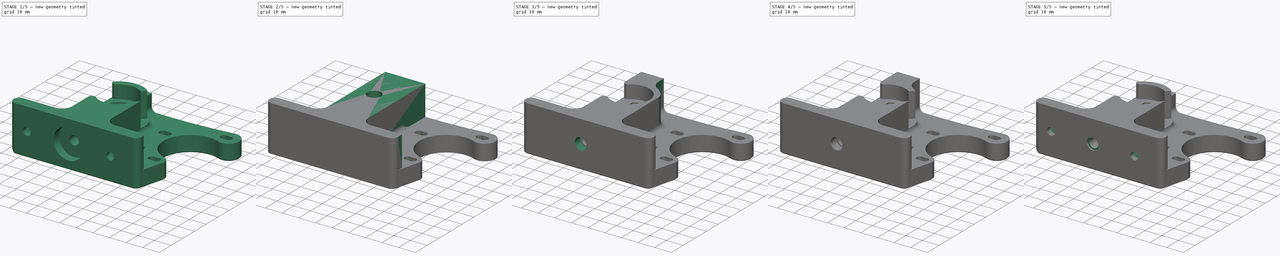
[diagram: build sequence overview — one tinted view per stage of 5, left to right]
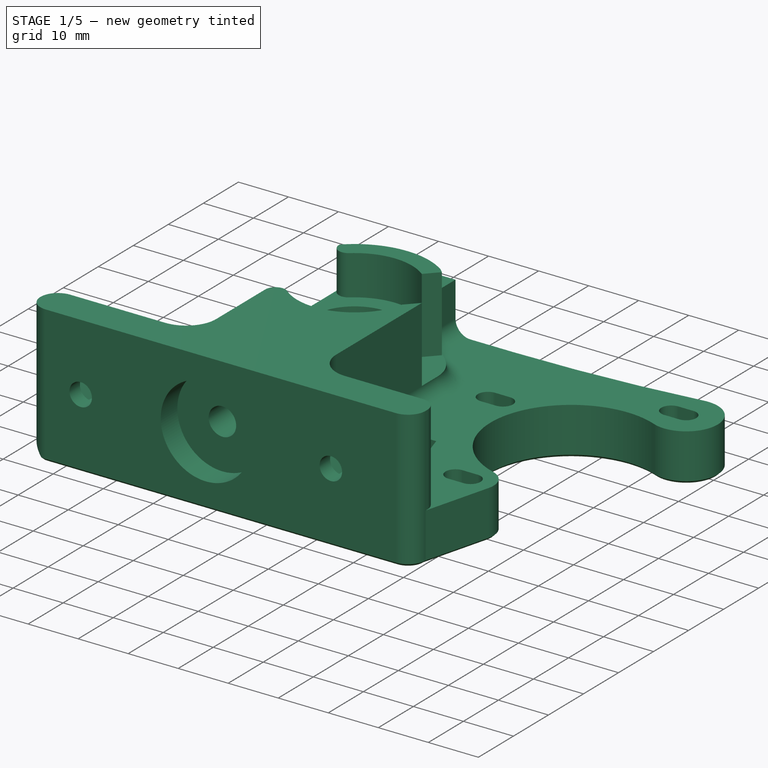
[diagram: stage 1 of 5 — iso view after this stage's code; geometry added in this stage tinted green]
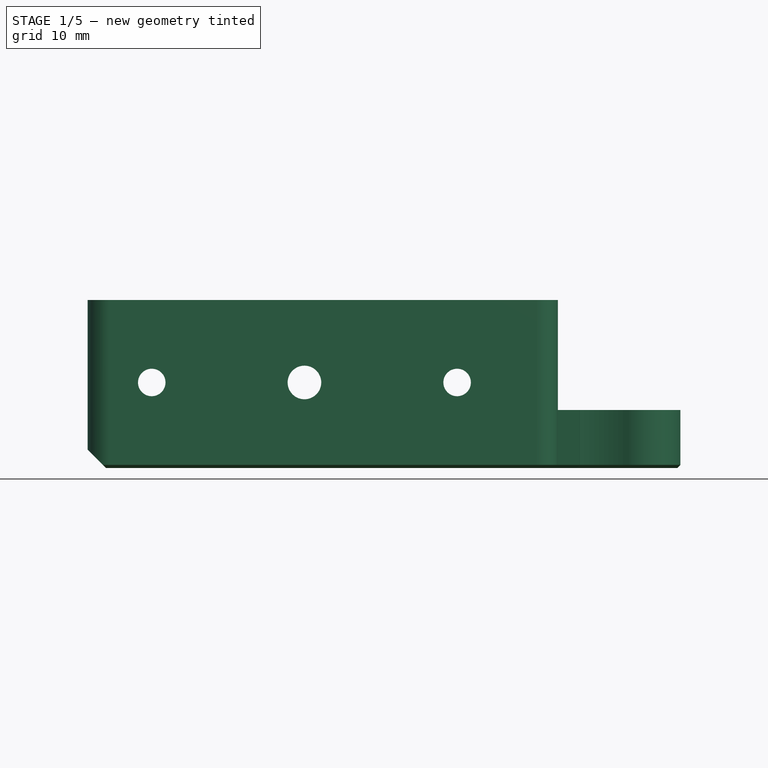
[diagram: stage 1 of 5 — front view after this stage's code; geometry added in this stage tinted green]
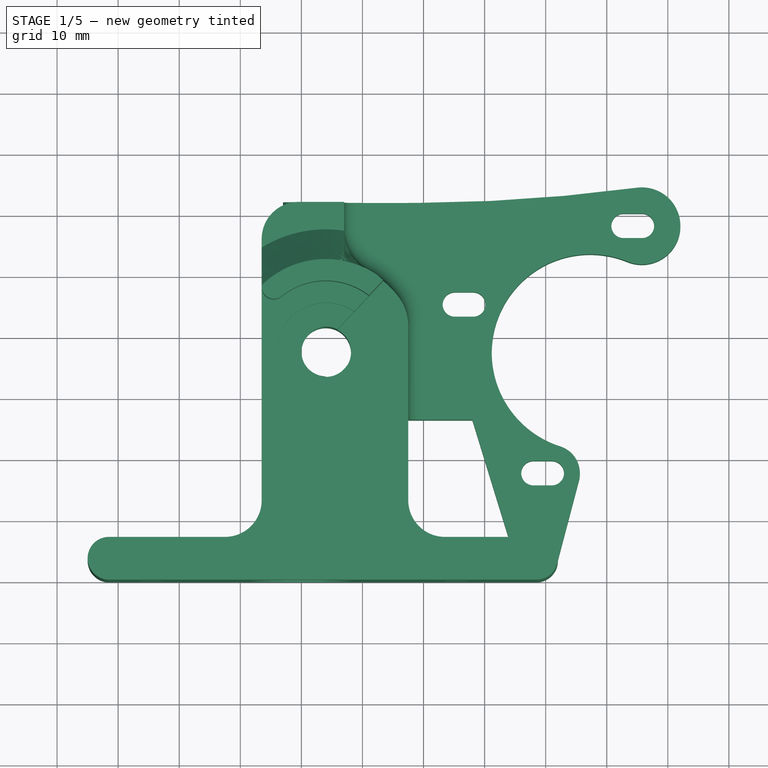
[diagram: stage 1 of 5 — top view after this stage's code; geometry added in this stage tinted green]
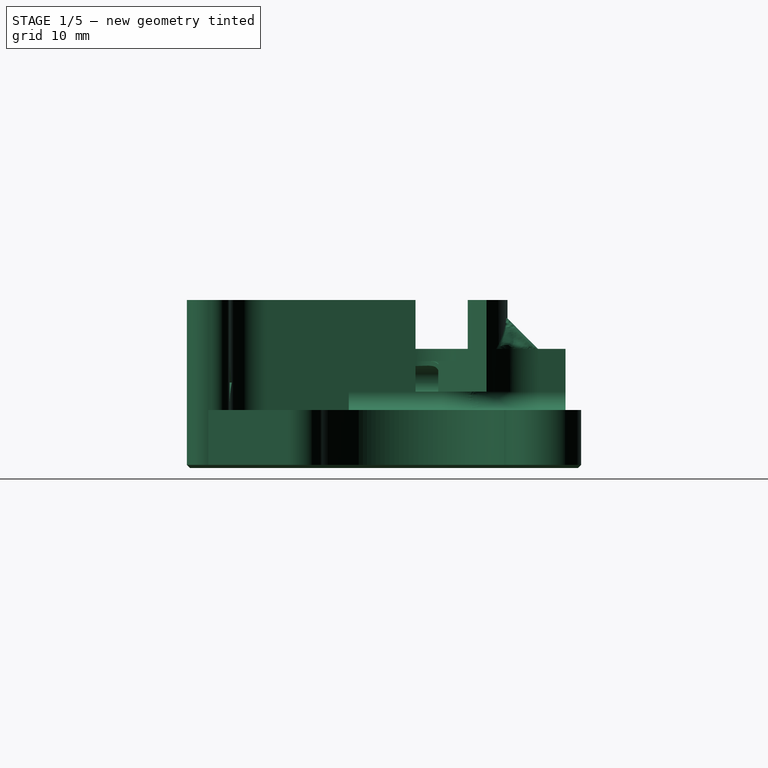
[diagram: stage 1 of 5 — right view after this stage's code; geometry added in this stage tinted green]
FCSTD DOCUMENT  (FreeCAD 0.16R4695 (Git))
Label: Flexystruder_0.9
License: CC-BY 3.0
LicenseURL: http://creativecommons.org/licenses/by/3.0/
objects: Sketcher::SketchObject×47, PartDesign::Pocket×28, PartDesign::Pad×19, PartDesign::Fillet×8, PartDesign::Chamfer×7, PartDesign::LinearPattern×2, Part::Feature×1
note: 159 computed .brp shape members not serialized (recipe doc carries the construction recipe); baked Part::Feature solids carry a one-line shape summary decoded from their .brp

FEATURE [Part::Feature] Pocket019001  label="Pocket020"
  shape: bbox 138.5 x 120.9 x 60.66 mm, 176 faces (baked)
FEATURE [Sketcher::SketchObject] Sketch028
  Placement = pos=(0,0,19.5) rot=(0,0,1;0rad)
  Support = -> Pocket019001 [Face25]
  sketch-geometry (4):
    g0: LineSegment StartX=-5 StartY=47.5 StartZ=0 EndX=-15 EndY=43.5 EndZ=0
    g1: LineSegment StartX=-15 StartY=43.5 StartZ=0 EndX=-15 EndY=31.5 EndZ=0
    g2: LineSegment StartX=-15 StartY=31.5 StartZ=0 EndX=-5 EndY=27.5 EndZ=0
    g3: LineSegment StartX=-5 StartY=27.5 StartZ=0 EndX=-5 EndY=47.5 EndZ=0
  constraints (12):
    c: Coincident(g0,g1)
    c: Coincident(g1,g2)
    c: Coincident(g2,g3)
    c: Coincident(g3,g0)
    c: Vertical(g1)
    c: Vertical(g3)
    c: DistanceX(g0) = -5
    c: DistanceY(g0) = 47.5
    c: DistanceY(g3) = 20
    c: DistanceY(g1) = -12
    c: Equal(g0,g2)
    c: DistanceX(g2) = 10
FEATURE [PartDesign::Pad] Pad008
  Length = 11.5
  Length2 = 100
  Reversed = true
  Sketch = -> Sketch028
  Type = 0
FEATURE [PartDesign::Fillet] Fillet006
  Base = -> Pad008 [Edge417,Edge83]
  Radius = 1
FEATURE [Sketcher::SketchObject] Sketch029
  Placement = pos=(-15,0,0) rot=(0.57735,-0.57735,-0.57735;2.0944rad)
  Support = -> Fillet006 [Face34]
  sketch-geometry (1):
    g0: Circle CenterX=-37.5 CenterY=14 CenterZ=0 NormalX=0 NormalY=0 NormalZ=1 Radius=2.7
  constraints (3):
    c: DistanceX(g0) = -37.5
    c: DistanceY(g0) = 14
    c: Radius(g0) = 2.7
FEATURE [PartDesign::Pocket] Pocket019002
  Length = 20
  Sketch = -> Sketch029
  Type = 0
FEATURE [Sketcher::SketchObject] Sketch030
  ExternalGeometry = -> [Pocket019002]
  Placement = pos=(0,0,0) rot=(1,0,0;1.5708rad)
  Support = -> Pocket019002 [Face29]
  sketch-geometry (1):
    g0: Circle CenterX=0.5 CenterY=14 CenterZ=0 NormalX=0 NormalY=0 NormalZ=1 Radius=9
  constraints (2):
    c: Coincident(g0,g-3)
    c: Radius(g0) = 9
FEATURE [PartDesign::Pocket] Pocket019003
  Length = 4.75
  Sketch = -> Sketch030
  Type = 0
FEATURE [Sketcher::SketchObject] Sketch031
  ExternalGeometry = -> [Pocket019003]
  Placement = pos=(0,0,8) rot=(1,0,0;3.14159rad)
  Support = -> Pocket019003 [Face10]
  sketch-geometry (9):
    g0: LineSegment StartX=-7.12861 StartY=-46.6486 StartZ=0 EndX=-15 EndY=-43.5 EndZ=0
    g1: LineSegment StartX=-15 StartY=-43.5 StartZ=0 EndX=-15 EndY=-31.5 EndZ=0
    g2: LineSegment StartX=-15 StartY=-31.5 StartZ=0 EndX=-7.12861 EndY=-28.3514 EndZ=0
    g3: LineSegment StartX=-7.12861 StartY=-28.3514 StartZ=0 EndX=-7.12861 EndY=-28.8514 EndZ=0
    g4: LineSegment StartX=-7.12861 StartY=-28.8514 StartZ=0 EndX=-14.5 EndY=-31.8 EndZ=0
    g5: LineSegment StartX=-14.5 StartY=-31.8 StartZ=0 EndX=-14.5 EndY=-43.2 EndZ=0
    g6: LineSegment StartX=-14.5 StartY=-43.2 StartZ=0 EndX=-7.12861 EndY=-46.1486 EndZ=0
    g7: LineSegment StartX=-7.12861 StartY=-46.1486 StartZ=0 EndX=-7.12861 EndY=-46.6486 EndZ=0
    g8: LineSegment [constr] StartX=-14.5 StartY=-31.8 StartZ=0 EndX=-15 EndY=-31.8 EndZ=0
  constraints (23):
    c: Coincident(g-4,g0)
    c: Coincident(g0,g-4)
    c: Coincident(g0,g1)
    c: Coincident(g1,g-3)
    c: Coincident(g1,g2)
    c: Coincident(g2,g-3)
    c: Coincident(g2,g3)
    c: Vertical(g3)
    c: Coincident(g3,g4)
    c: Coincident(g4,g5)
    c: Vertical(g5)
    c: Coincident(g5,g6)
    c: Coincident(g6,g7)
    c: Coincident(g7,g0)
    c: Vertical(g7)
    c: Equal(g7,g3)
    c: Coincident(g8,g4)
    c: PointOnObject(g8,g1)
    c: Horizontal(g8)
    c: Equal(g8,g3)
    c: DistanceY(g7) = -0.5
    c: Parallel(g6,g-4)
    c: Parallel(g4,g-3)
FEATURE [PartDesign::Pad] Pad009
  Length = 10
  Length2 = 100
  Sketch = -> Sketch031
  Type = 3
  UpToFace = -> Pocket019003 [Face105]
FEATURE [Sketcher::SketchObject] Sketch032
  ExternalGeometry = -> [Pad009]
  Placement = pos=(0,0,0) rot=(1,0,0;3.14159rad)
  Support = -> Pad009 [Face112]
  sketch-geometry (4):
    g0: LineSegment StartX=-5.59594 StartY=-40.9004 StartZ=0 EndX=-15 EndY=-40.9004 EndZ=0
    g1: LineSegment StartX=-15 StartY=-40.9004 StartZ=0 EndX=-15 EndY=-34.1307 EndZ=0
    g2: LineSegment StartX=-15 StartY=-34.1307 StartZ=0 EndX=-5.59594 EndY=-34.1307 EndZ=0
    g3: LineSegment StartX=-5.59594 StartY=-34.1307 StartZ=0 EndX=-5.59594 EndY=-40.9004 EndZ=0
  constraints (11):
    c: Coincident(g0,g1)
    c: Coincident(g1,g2)
    c: Coincident(g2,g3)
    c: Coincident(g3,g0)
    c: Horizontal(g0)
    c: Horizontal(g2)
    c: Vertical(g1)
    c: Vertical(g3)
    c: Coincident(g0,g-3)
    c: PointOnObject(g1,g-4)
    c: Coincident(g2,g-3)
FEATURE [PartDesign::Pad] Pad010
  Length = 0.75
  Length2 = 100
  Reversed = true
  Sketch = -> Sketch032
  Type = 0
FEATURE [Sketcher::SketchObject] Sketch033
  ExternalGeometry = -> [Pad010]
  Placement = pos=(0,0,0) rot=(1,0,0;3.14159rad)
  Support = -> Pad010 [Face117]
  sketch-geometry (19):
    g0: Circle [constr] CenterX=4 CenterY=-37.5 CenterZ=0 NormalX=0 NormalY=0 NormalZ=1 Radius=9.5
    g1: Circle [constr] CenterX=4 CenterY=-37.5 CenterZ=0 NormalX=0 NormalY=0 NormalZ=1 Radius=8.7
    g2: Circle [constr] CenterX=4 CenterY=-37.5 CenterZ=0 NormalX=0 NormalY=0 NormalZ=1 Radius=7.5
    g3: Circle [constr] CenterX=4 CenterY=-37.5 CenterZ=0 NormalX=0 NormalY=0 NormalZ=1 Radius=6.7
    g4: Circle [constr] CenterX=4 CenterY=-37.5 CenterZ=0 NormalX=0 NormalY=0 NormalZ=1 Radius=4.125
    g5: Circle [constr] CenterX=4 CenterY=-37.5 CenterZ=0 NormalX=0 NormalY=0 NormalZ=1 Radius=5
    g6: LineSegment StartX=-7.12861 StartY=-28.3514 StartZ=0 EndX=-7.12861 EndY=-29.1514 EndZ=0
    g7: LineSegment StartX=-7.12861 StartY=-29.1514 StartZ=0 EndX=-14.2 EndY=-31.98 EndZ=0
    g8: LineSegment StartX=-14.2 StartY=-31.98 StartZ=0 EndX=-14.2 EndY=-43.02 EndZ=0
    g9: LineSegment StartX=-14.2 StartY=-43.02 StartZ=0 EndX=-7.12861 EndY=-45.8486 EndZ=0
    g10: LineSegment StartX=-7.12861 StartY=-45.8486 StartZ=0 EndX=-7.12861 EndY=-46.6486 EndZ=0
    g11: LineSegment StartX=-7.12861 StartY=-46.6486 StartZ=0 EndX=-15 EndY=-43.5 EndZ=0
    g12: LineSegment StartX=-15 StartY=-43.5 StartZ=0 EndX=-15 EndY=-31.5 EndZ=0
    g13: LineSegment StartX=-15 StartY=-31.5 StartZ=0 EndX=-7.12861 EndY=-28.3514 EndZ=0
    g14: LineSegment [constr] StartX=-14.2 StartY=-31.98 StartZ=0 EndX=-15 EndY=-31.98 EndZ=0
    g15: LineSegment StartX=-6 StartY=-30.45 StartZ=0 EndX=-6.8 EndY=-30.45 EndZ=0
    g16: LineSegment StartX=-6.8 StartY=-30.45 StartZ=0 EndX=-6.8 EndY=-44.9947 EndZ=0
    g17: LineSegment StartX=-6.8 StartY=-44.9947 StartZ=0 EndX=-6 EndY=-44.9947 EndZ=0
    g18: LineSegment StartX=-6 StartY=-44.9947 StartZ=0 EndX=-6 EndY=-30.45 EndZ=0
  constraints (46):
    c: Coincident(g0,g-4)
    c: PointOnObject(g-3,g0)
    c: Coincident(g1,g0)
    c: Coincident(g2,g0)
    c: PointOnObject(g-4,g2)
    c: Coincident(g3,g0)
    c: Radius(g1) = 8.7
    c: Radius(g3) = 6.7
    c: Coincident(g4,g0)
    c: PointOnObject(g-10,g4)
    c: Coincident(g5,g0)
    c: Radius(g5) = 5
    c: Coincident(g-5,g6)
    c: Vertical(g6)
    c: Coincident(g6,g7)
    c: Coincident(g7,g8)
    c: Vertical(g8)
    c: Coincident(g8,g9)
    c: Coincident(g9,g10)
    c: Coincident(g10,g-7)
    c: Vertical(g10)
    c: Coincident(g10,g11)
    c: Coincident(g11,g-7)
    c: Coincident(g11,g12)
    c: Coincident(g12,g-6)
    c: Coincident(g12,g13)
    c: Coincident(g13,g6)
    c: Coincident(g14,g7)
    c: PointOnObject(g14,g-6)
    c: Horizontal(g14)
    c: Equal(g14,g6)
    c: Equal(g6,g10)
    c: DistanceY(g10) = -0.8
    c: Parallel(g-7,g9)
    c: Parallel(g7,g-5)
    c: Coincident(g15,g16)
    c: Coincident(g16,g17)
    c: Coincident(g17,g18)
    c: Coincident(g18,g15)
    c: Horizontal(g15)
    c: Horizontal(g17)
    c: Vertical(g16)
    c: Vertical(g18)
    c: Coincident(g15,g-11)
    c: Coincident(g17,g-12)
    c: Equal(g17,g10)
FEATURE [PartDesign::Pad] Pad011
  Length = 7.5
  Length2 = 100
  Reversed = true
  Sketch = -> Sketch033
  Type = 0
FEATURE [Sketcher::SketchObject] Sketch034
  ExternalGeometry = -> [Pad011]
  Placement = pos=(0,0,0) rot=(1,0,0;3.14159rad)
  Support = -> Pad011 [Face114]
  sketch-geometry (2):
    g0: Circle CenterX=4 CenterY=-37.5 CenterZ=0 NormalX=0 NormalY=0 NormalZ=1 Radius=4.125
    g1: Circle CenterX=4 CenterY=-37.5 CenterZ=0 NormalX=0 NormalY=0 NormalZ=1 Radius=5
  constraints (4):
    c: Coincident(g0,g-5)
    c: PointOnObject(g-3,g0)
    c: Coincident(g1,g0)
    c: Radius(g1) = 5
FEATURE [PartDesign::Pad] Pad012
  Length = 7.5
  Length2 = 100
  Reversed = true
  Sketch = -> Sketch034
  Type = 0
FEATURE [Sketcher::SketchObject] Sketch035
  ExternalGeometry = -> [Pad012]
  Placement = pos=(0,0,0) rot=(1,0,0;3.14159rad)
  Support = -> Pad012 [Face114]
  sketch-geometry (2):
    g0: Circle CenterX=4 CenterY=-37.5 CenterZ=0 NormalX=0 NormalY=0 NormalZ=1 Radius=7
    g1: Circle CenterX=4 CenterY=-37.5 CenterZ=0 NormalX=0 NormalY=0 NormalZ=1 Radius=8
  constraints (4):
    c: Coincident(g0,g-4)
    c: PointOnObject(g-3,g0)
    c: Coincident(g1,g0)
    c: Radius(g1) = 8
FEATURE [PartDesign::Pad] Pad013
  Length = 7.5
  Length2 = 100
  Reversed = true
  Sketch = -> Sketch035
  Type = 0
FEATURE [Sketcher::SketchObject] Sketch036
  ExternalGeometry = -> [Pad013]
  Placement = pos=(0,0,0) rot=(1,0,0;3.14159rad)
  Support = -> Pad013 [Face226]
  sketch-geometry (2):
    g0: Circle CenterX=4 CenterY=-37.5 CenterZ=0 NormalX=0 NormalY=0 NormalZ=1 Radius=9
    g1: Circle CenterX=3.98018 CenterY=-37.516 CenterZ=0 NormalX=0 NormalY=0 NormalZ=1 Radius=9.9
  constraints (3):
    c: Coincident(g0,g-3)
    c: PointOnObject(g-3,g0)
    c: Radius(g1) = 9.9
FEATURE [PartDesign::Pad] Pad014
  Length = 7.5
  Length2 = 100
  Reversed = true
  Sketch = -> Sketch036
  Type = 0
FEATURE [Sketcher::SketchObject] Sketch037
  ExternalGeometry = -> [Pad014]
  Placement = pos=(0,0,27.5) rot=(0,0,1;0rad)
  Support = -> Pad014 [Face8]
  sketch-geometry (4):
    g0: LineSegment StartX=-6.5 StartY=56 StartZ=0 EndX=-29.8635 EndY=56 EndZ=0
    g1: LineSegment StartX=-29.8635 StartY=56 StartZ=0 EndX=-29.8635 EndY=13 EndZ=0
    g2: LineSegment StartX=-29.8635 StartY=13 StartZ=0 EndX=-6.5 EndY=13 EndZ=0
    g3: LineSegment StartX=-6.5 StartY=13 StartZ=0 EndX=-6.5 EndY=56 EndZ=0
  constraints (10):
    c: Coincident(g0,g1)
    c: Coincident(g1,g2)
    c: Coincident(g2,g3)
    c: Coincident(g3,g0)
    c: Horizontal(g0)
    c: Horizontal(g2)
    c: Vertical(g1)
    c: Vertical(g3)
    c: Coincident(g0,g-4)
    c: Coincident(g-3,g2)
FEATURE [PartDesign::Pocket] Pocket019004
  Length = 5
  Sketch = -> Sketch037
  Type = 1
FEATURE [Sketcher::SketchObject] Sketch038
  ExternalGeometry = -> [Pocket019004]
  Placement = pos=(-6.5,0,0) rot=(0.57735,-0.57735,-0.57735;2.0944rad)
  Support = -> Pocket019004 [Face6]
  sketch-geometry (1):
    g0: Circle CenterX=-37.5 CenterY=14 CenterZ=0 NormalX=0 NormalY=0 NormalZ=1 Radius=3.43
  constraints (2):
    c: Coincident(g0,g-3)
    c: Radius(g0) = 3.43
FEATURE [PartDesign::Pad] Pad015
  Length = 6.5
  Length2 = 100
  Reversed = true
  Sketch = -> Sketch038
  Type = 0
FEATURE [Sketcher::SketchObject] Sketch039
  ExternalGeometry = -> [Pad015]
  Placement = pos=(0,62,0) rot=(0,0.707107,0.707107;3.14159rad)
  Support = -> Pad015 [Face116]
  sketch-geometry (1):
    g0: Circle CenterX=-0.5 CenterY=14 CenterZ=0 NormalX=0 NormalY=0 NormalZ=1 Radius=2.75
  constraints (2):
    c: Coincident(g0,g-3)
    c: Equal(g-3,g0)
FEATURE [PartDesign::Pocket] Pocket019005
  Length = 5
  Sketch = -> Sketch039
  Type = 1
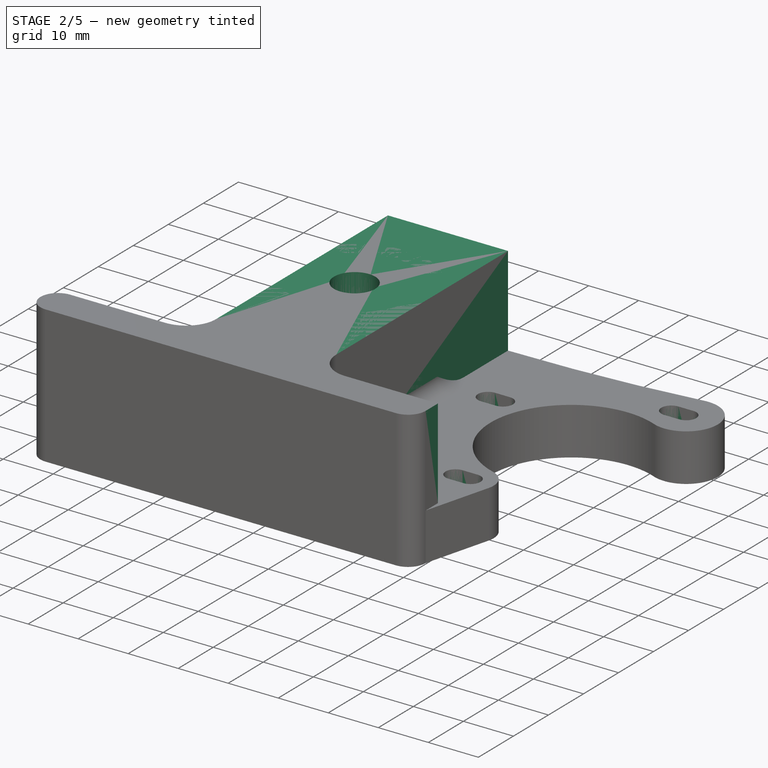
[diagram: stage 2 of 5 — iso view after this stage's code; geometry added in this stage tinted green]
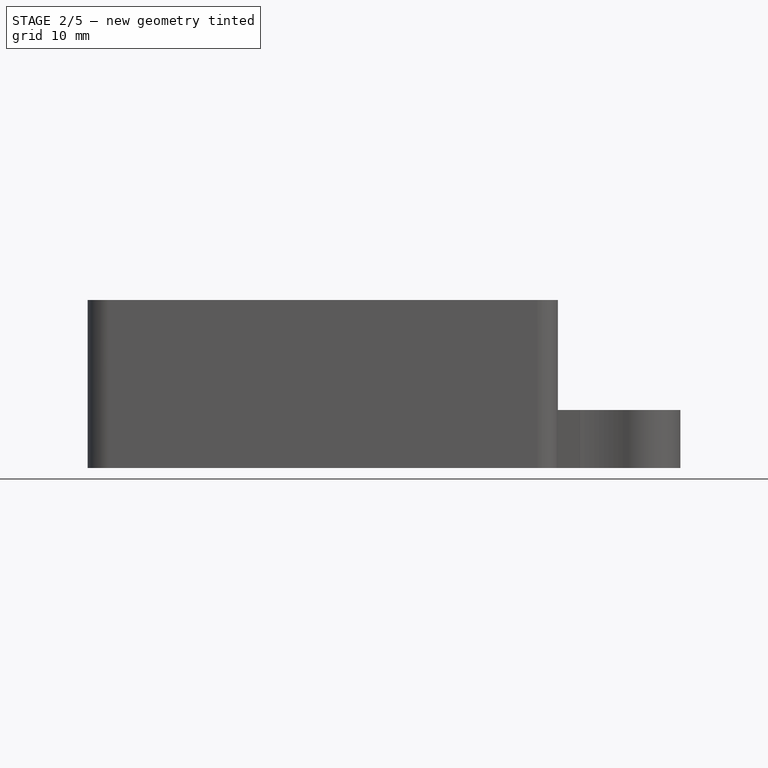
[diagram: stage 2 of 5 — front view after this stage's code; geometry added in this stage tinted green]
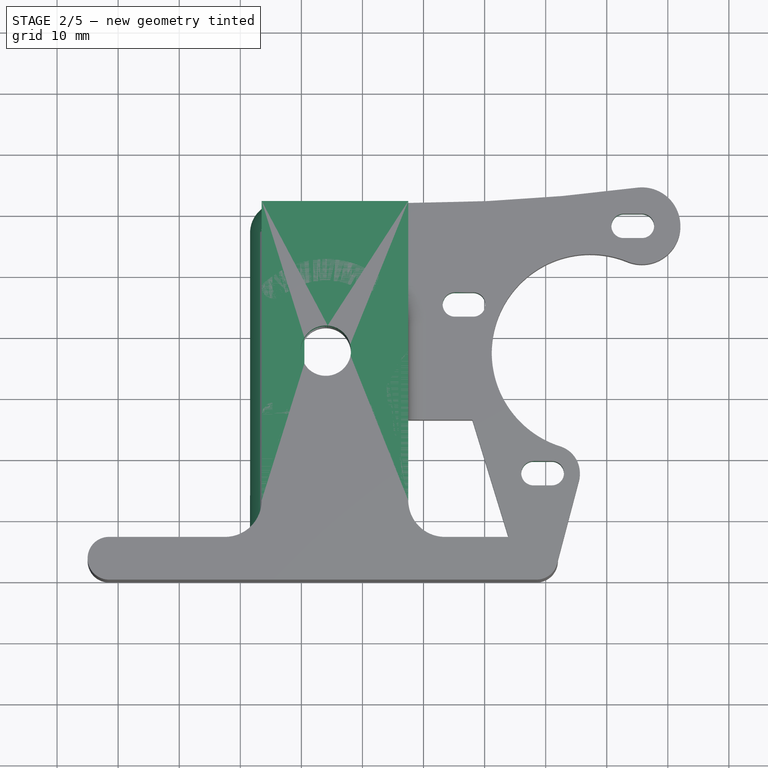
[diagram: stage 2 of 5 — top view after this stage's code; geometry added in this stage tinted green]
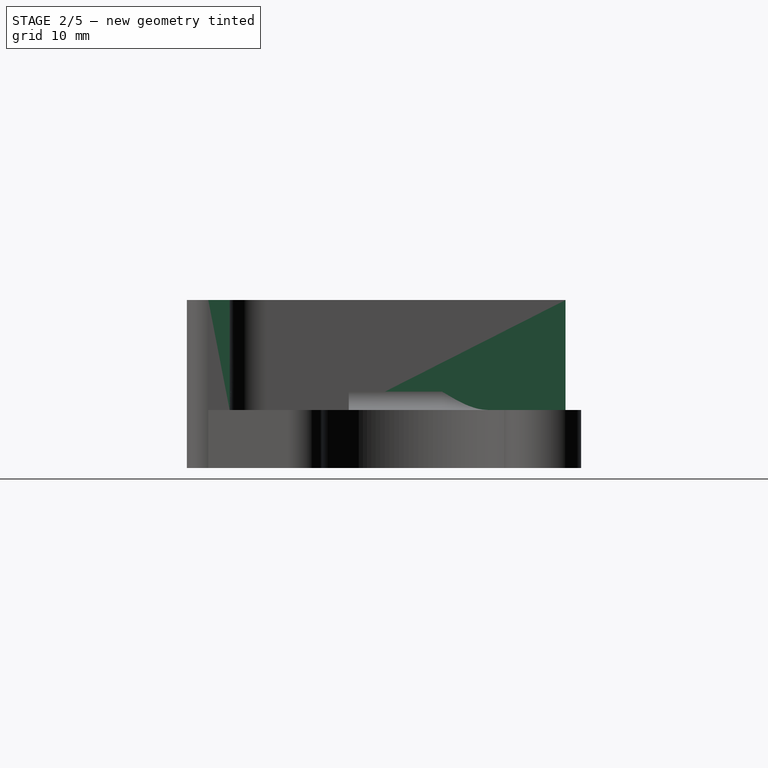
[diagram: stage 2 of 5 — right view after this stage's code; geometry added in this stage tinted green]
FEATURE [Sketcher::SketchObject] Sketch
  sketch-geometry (56):
    g0: LineSegment [constr] StartX=38.5 StartY=7 StartZ=0 EndX=38.5 EndY=0 EndZ=0
    g1: LineSegment StartX=38.5 StartY=0 StartZ=0 EndX=-31.5 EndY=0 EndZ=0
    g2: LineSegment [constr] StartX=-31.5 StartY=0 StartZ=0 EndX=-31.5 EndY=7 EndZ=0
    g3: ArcOfCircle CenterX=-31.5 CenterY=3.5 CenterZ=0 NormalX=0 NormalY=0 NormalZ=1 Radius=3.5 StartAngle=1.5708 EndAngle=4.71239
    g4: LineSegment [constr] StartX=-31.5 StartY=7 StartZ=0 EndX=-35 EndY=7 EndZ=0
    g5: LineSegment [constr] StartX=-35 StartY=7 StartZ=0 EndX=-35 EndY=0 EndZ=0
    g6: LineSegment [constr] StartX=-35 StartY=0 StartZ=0 EndX=-31.5 EndY=0 EndZ=0
    g7: LineSegment [constr] StartX=38.5 StartY=7 StartZ=0 EndX=42 EndY=7 EndZ=0
    g8: LineSegment [constr] StartX=42 StartY=0 StartZ=0 EndX=38.5 EndY=0 EndZ=0
    g9: LineSegment StartX=-31.5 StartY=7 StartZ=0 EndX=-12.5 EndY=7 EndZ=0
    g10: ArcOfCircle CenterX=-12.5 CenterY=13 CenterZ=0 NormalX=0 NormalY=0 NormalZ=1 Radius=6 StartAngle=4.71239 EndAngle=6.28319
    g11: LineSegment StartX=-6.5 StartY=13 StartZ=0 EndX=-6.5 EndY=27 EndZ=0
    g12: LineSegment [constr] StartX=-6.5 StartY=13 StartZ=0 EndX=-14.7934 EndY=17.0274 EndZ=0
    g13: LineSegment [constr] StartX=-6.5 StartY=27 StartZ=0 EndX=-12.5 EndY=27 EndZ=0
    g14: ArcOfCircle [constr] CenterX=-12.5 CenterY=21.75 CenterZ=0 NormalX=0 NormalY=0 NormalZ=1 Radius=5.25 StartAngle=1.5708 EndAngle=4.26031
    g15: LineSegment StartX=-6.5 StartY=27 StartZ=0 EndX=-6.5 EndY=56 EndZ=0
    g16: ArcOfCircle CenterX=-0.5 CenterY=56 CenterZ=0 NormalX=0 NormalY=0 NormalZ=1 Radius=6 StartAngle=1.5708 EndAngle=3.14159
    g17: LineSegment StartX=-0.5 StartY=62 StartZ=0 EndX=17.5 EndY=62 EndZ=0
    g18: LineSegment [constr] StartX=17.5 StartY=62 StartZ=0 EndX=17.5 EndY=7 EndZ=0
    g19: LineSegment [constr] StartX=17.5 StartY=7 StartZ=0 EndX=38.5 EndY=7 EndZ=0
    g20: LineSegment StartX=17.5 StartY=26.5 StartZ=0 EndX=28 EndY=26.5 EndZ=0
    g21: LineSegment StartX=28 StartY=26.5 StartZ=0 EndX=34 EndY=7 EndZ=0
    g22: ArcOfCircle CenterX=23.5 CenterY=13 CenterZ=0 NormalX=0 NormalY=0 NormalZ=1 Radius=6 StartAngle=3.14159 EndAngle=4.71239
    g23: ArcOfCircle CenterX=38 CenterY=17.75 CenterZ=0 NormalX=0 NormalY=0 NormalZ=1 Radius=2 StartAngle=1.5708 EndAngle=4.71239
    g24: LineSegment StartX=38 StartY=19.75 StartZ=0 EndX=41 EndY=19.75 EndZ=0
    g25: LineSegment [constr] StartX=41 StartY=19.75 StartZ=0 EndX=41 EndY=15.75 EndZ=0
    g26: LineSegment StartX=41 StartY=15.75 StartZ=0 EndX=38 EndY=15.75 EndZ=0
    g27: LineSegment [constr] StartX=38 StartY=15.75 StartZ=0 EndX=38 EndY=19.75 EndZ=0
    g28: ArcOfCircle CenterX=41 CenterY=17.75 CenterZ=0 NormalX=0 NormalY=0 NormalZ=1 Radius=2 StartAngle=4.71239 EndAngle=7.85398
    g29: LineSegment [constr] StartX=42 StartY=7 StartZ=0 EndX=42 EndY=3.5 EndZ=0
    g30: ArcOfCircle CenterX=38.5 CenterY=3.5 CenterZ=0 NormalX=0 NormalY=0 NormalZ=1 Radius=3.5 StartAngle=4.71239 EndAngle=6.28319
    g31: LineSegment [constr] StartX=42 StartY=3.5 StartZ=0 EndX=42 EndY=0 EndZ=0
    g32: LineSegment StartX=23.5 StartY=7 StartZ=0 EndX=34 EndY=7 EndZ=0
    g33: LineSegment StartX=17.5 StartY=26.5 StartZ=0 EndX=17.5 EndY=13 EndZ=0
    g34: ArcOfCircle CenterX=41 CenterY=17.75 CenterZ=0 NormalX=0 NormalY=0 NormalZ=1 Radius=4.6 StartAngle=6.02539 EndAngle=7.5456
    g35: LineSegment StartX=42 StartY=3.5 StartZ=0 EndX=45.448 EndY=16.5772 EndZ=0
    g36: LineSegment StartX=25.1292 StartY=47.3792 StartZ=0 EndX=28.1292 EndY=47.3792 EndZ=0
    g37: LineSegment [constr] StartX=28.1292 StartY=47.3792 StartZ=0 EndX=28.1292 EndY=43.3792 EndZ=0
    g38: LineSegment StartX=28.1292 StartY=43.3792 StartZ=0 EndX=25.1292 EndY=43.3792 EndZ=0
    g39: LineSegment [constr] StartX=25.1292 StartY=43.3792 StartZ=0 EndX=25.1292 EndY=47.3792 EndZ=0
    g40: ArcOfCircle CenterX=25.1292 CenterY=45.3792 CenterZ=0 NormalX=0 NormalY=0 NormalZ=1 Radius=2 StartAngle=1.5708 EndAngle=4.71239
    g41: ArcOfCircle CenterX=28.1292 CenterY=45.3792 CenterZ=0 NormalX=0 NormalY=0 NormalZ=1 Radius=2 StartAngle=4.71239 EndAngle=7.85398
    g42: LineSegment [constr] StartX=25.1292 StartY=45.3792 StartZ=0 EndX=38 EndY=17.75 EndZ=0
    g43: LineSegment StartX=52.7584 StartY=60.25 StartZ=0 EndX=55.7584 EndY=60.25 EndZ=0
    g44: LineSegment [constr] StartX=55.7584 StartY=60.25 StartZ=0 EndX=55.7584 EndY=56.25 EndZ=0
    g45: LineSegment StartX=55.7584 StartY=56.25 StartZ=0 EndX=52.7584 EndY=56.25 EndZ=0
    g46: LineSegment [constr] StartX=52.7584 StartY=56.25 StartZ=0 EndX=52.7584 EndY=60.25 EndZ=0
    g47: ArcOfCircle CenterX=52.7584 CenterY=58.25 CenterZ=0 NormalX=0 NormalY=0 NormalZ=1 Radius=2 StartAngle=1.5708 EndAngle=4.71239
    g48: ArcOfCircle CenterX=55.7584 CenterY=58.25 CenterZ=0 NormalX=0 NormalY=0 NormalZ=1 Radius=2 StartAngle=4.71239 EndAngle=7.85398
    g49: LineSegment [constr] StartX=25.1292 StartY=45.3792 StartZ=0 EndX=52.7584 EndY=58.25 EndZ=0
    g50: Circle [constr] CenterX=55.7584 CenterY=58.25 CenterZ=0 NormalX=0 NormalY=0 NormalZ=1 Radius=6.3
    g51: ArcOfCircle [constr] CenterX=28.1292 CenterY=45.3792 CenterZ=0 NormalX=0 NormalY=0 NormalZ=1 Radius=4.6 StartAngle=4.51582 EndAngle=6.99813
    g52: Circle [constr] CenterX=47.2887 CenterY=37.492 CenterZ=0 NormalX=0 NormalY=0 NormalZ=1 Radius=16.1194
    g53: ArcOfCircle CenterX=47.2887 CenterY=37.492 CenterZ=0 NormalX=0 NormalY=0 NormalZ=1 Radius=16.1194 StartAngle=1.18339 EndAngle=4.40401
    g54: ArcOfCircle CenterX=55.7584 CenterY=58.25 CenterZ=0 NormalX=0 NormalY=0 NormalZ=1 Radius=6.3 StartAngle=4.32499 EndAngle=7.98709
    g55: ArcOfCircle CenterX=17.5 CenterY=343.976 CenterZ=0 NormalX=0 NormalY=0 NormalZ=1 Radius=281.976 StartAngle=4.71239 EndAngle=4.8455
  constraints (168):
    c: Coincident(g0,g1)
    c: Coincident(g1,g2)
    c: Horizontal(g1)
    c: Vertical(g0)
    c: Vertical(g2)
    c: PointOnObject(g3,g2)
    c: Coincident(g3,g1)
    c: DistanceY(g2,g1) = -7
    c: PointOnObject(g1,g-1)
    c: Coincident(g4,g5)
    c: Coincident(g5,g6)
    c: Horizontal(g4)
    c: Horizontal(g6)
    c: Vertical(g5)
    c: Coincident(g6,g1)
    c: Tangent(g5,g3)
    c: Horizontal(g7)
    c: Horizontal(g8)
    c: Coincident(g8,g0)
    c: DistanceX(g8,g5) = -77
    c: DistanceX(g-1,g8) = 42
    c: Coincident(g9,g2)
    c: Horizontal(g9)
    c: Coincident(g3,g2)
    c: Coincident(g10,g9)
    c: Radius(g10) = 6
    c: Tangent(g10,g9)
    c: Coincident(g11,g10)
    c: Vertical(g11)
    c: Tangent(g10,g11)
    c: Coincident(g12,g10)
    c: Coincident(g13,g11)
    c: Horizontal(g13)
    c: DistanceY(g11,g9) = -20
    c: DistanceX(g-1,g13) = -12.5
    c: DistanceX(g11,g4) = -28.5
    c: Coincident(g14,g13)
    c: Coincident(g14,g12)
    c: Tangent(g14,g13)
    c: Tangent(g14,g12)
    c: Radius(g14) = 5.25
    c: Coincident(g7,g0)
    c: Coincident(g15,g11)
    c: Vertical(g15)
    c: Coincident(g16,g15)
    c: Radius(g16) = 6
    c: Tangent(g16,g15)
    c: Coincident(g17,g16)
    c: Horizontal(g17)
    c: DistanceY(g1,g16) = 62
    c: Vertical(g18)
    c: Coincident(g17,g18)
    c: DistanceX(g18,g7) = 24.5
    c: Coincident(g19,g18)
    c: Coincident(g19,g0)
    c: Horizontal(g19)
    c: PointOnObject(g20,g18)
    c: Horizontal(g20)
    c: Coincident(g21,g20)
    c: PointOnObject(g21,g19)
    c: DistanceX(g21,g7) = 8
    c: PointOnObject(g22,g18)
    c: PointOnObject(g22,g19)
    c: Radius(g22) = 6
    c: Tangent(g22,g19)
    c: Tangent(g22,g18)
    c: DistanceX(g20) = 10.5
    c: DistanceY(g20,g8) = -26.5
    c: Tangent(g16,g17)
    c: Coincident(g4,g2)
    c: Coincident(g24,g25)
    c: Coincident(g25,g26)
    c: Coincident(g26,g27)
    c: Coincident(g27,g24)
    c: Horizontal(g24)
    c: Horizontal(g26)
    c: Vertical(g25)
    c: Vertical(g27)
    c: Coincident(g24,g23)
    c: PointOnObject(g23,g27)
    c: Coincident(g23,g26)
    c: PointOnObject(g28,g25)
    c: Coincident(g28,g24)
    c: Coincident(g28,g25)
    c: DistanceX(g24) = 3
    c: DistanceY(g27) = 4
    c: DistanceY(g25,g8) = -15.75
    c: DistanceX(g-1,g23) = 38
    c: Vertical(g29)
    c: PointOnObject(g30,g0)
    c: Coincident(g30,g0)
    c: Coincident(g30,g29)
    c: Radius(g30) = 3.5
    c: Tangent(g30,g29)
    c: Coincident(g29,g7)
    c: Coincident(g31,g29)
    c: Coincident(g31,g8)
    c: Vertical(g31)
    c: DistanceY(g7,g8) = -7
    c: Coincident(g32,g22)
    c: Coincident(g32,g21)
    c: Coincident(g33,g20)
    c: Coincident(g33,g22)
    c: Coincident(g34,g28)
    c: Radius(g34) = 4.6
    c: Coincident(g35,g29)
    c: Coincident(g35,g34)
    c: Tangent(g35,g34)
    c: Coincident(g36,g37)
    c: Coincident(g37,g38)
    c: Coincident(g38,g39)
    c: Coincident(g39,g36)
    c: Horizontal(g36)
    c: Horizontal(g38)
    c: Vertical(g37)
    c: Vertical(g39)
    c: DistanceY(g39) = 4
    c: DistanceX(g38) = -3
    c: PointOnObject(g40,g39)
    c: Coincident(g40,g36)
    c: Coincident(g40,g38)
    c: PointOnObject(g41,g37)
    c: Coincident(g41,g36)
    c: Coincident(g41,g37)
    c: Coincident(g42,g40)
    c: Coincident(g42,g23)
    c: Coincident(g43,g44)
    c: Coincident(g44,g45)
    c: Coincident(g45,g46)
    c: Coincident(g46,g43)
    c: Horizontal(g43)
    c: Horizontal(g45)
    c: Vertical(g44)
    c: Vertical(g46)
    c: DistanceX(g45) = -3
    c: DistanceY(g46) = 4
    c: PointOnObject(g47,g46)
    c: Coincident(g47,g43)
    c: Coincident(g47,g45)
    c: PointOnObject(g48,g44)
    c: Coincident(g48,g43)
    c: Coincident(g48,g44)
    c: Distance(g42) = 30.48
    c: Coincident(g49,g40)
    c: Coincident(g49,g47)
    c: Perpendicular(g49,g42)
    c: Distance(g49) = 30.48
    c: DistanceY(g-1,g48) = 58.25
    c: Coincident(g50,g48)
    c: Radius(g50) = 6.3
    c: Coincident(g51,g41)
    c: PointOnObject(g51,g49)
    c: PointOnObject(g51,g42)
    c: Radius(g51) = 4.6
    c: Tangent(g52,g50)
    c: Tangent(g52,g34)
    c: Tangent(g52,g51)
    c: Coincident(g53,g52)
    c: PointOnObject(g53,g34)
    c: Equal(g53,g52)
    c: Coincident(g53,g34)
    c: Coincident(g54,g48)
    c: Coincident(g54,g53)
    c: Coincident(g55,g17)
    c: Coincident(g55,g54)
    c: Tangent(g55,g17)
    c: Radius(g54) = 6.3
    c: Tangent(g55,g50)
FEATURE [PartDesign::Pad] Pad
  Length = 9.5
  Length2 = 100
  Sketch = -> Sketch
  Type = 0
FEATURE [Sketcher::SketchObject] Sketch001
  ExternalGeometry = -> [Pad]
  Placement = pos=(0,0,9.5) rot=(0,0,1;0rad)
  Support = -> Pad [Face33]
  sketch-geometry (11):
    g0: LineSegment StartX=17.5 StartY=13 StartZ=0 EndX=17.5 EndY=62 EndZ=0
    g1: LineSegment StartX=23.5 StartY=7 StartZ=0 EndX=42 EndY=7 EndZ=0
    g2: LineSegment StartX=42 StartY=3.5 StartZ=0 EndX=42 EndY=7 EndZ=0
    g3: ArcOfCircle CenterX=38.5 CenterY=3.5 CenterZ=0 NormalX=0 NormalY=0 NormalZ=1 Radius=3.5 StartAngle=4.71239 EndAngle=6.28319
    g4: LineSegment StartX=38.5 StartY=0 StartZ=0 EndX=-31.5 EndY=0 EndZ=0
    g5: ArcOfCircle CenterX=-31.5 CenterY=3.5 CenterZ=0 NormalX=0 NormalY=0 NormalZ=1 Radius=3.5 StartAngle=1.5708 EndAngle=4.71239
    g6: LineSegment StartX=-31.5 StartY=7 StartZ=0 EndX=-12.5 EndY=7 EndZ=0
    g7: ArcOfCircle CenterX=-12.5 CenterY=13 CenterZ=0 NormalX=0 NormalY=0 NormalZ=1 Radius=6 StartAngle=4.71239 EndAngle=6.28319
    g8: LineSegment StartX=-6.5 StartY=13 StartZ=0 EndX=-6.5 EndY=62 EndZ=0
    g9: LineSegment StartX=-6.5 StartY=62 StartZ=0 EndX=17.5 EndY=62 EndZ=0
    g10: ArcOfCircle CenterX=23.5 CenterY=13 CenterZ=0 NormalX=0 NormalY=0 NormalZ=1 Radius=6 StartAngle=3.14159 EndAngle=4.71239
  constraints (30):
    c: Coincident(g0,g-8)
    c: Coincident(g0,g-3)
    c: Coincident(g1,g-8)
    c: Coincident(g2,g-7)
    c: Coincident(g2,g1)
    c: Vertical(g2)
    c: Horizontal(g1)
    c: Coincident(g3,g-7)
    c: Coincident(g3,g2)
    c: Coincident(g3,g-7)
    c: Coincident(g4,g3)
    c: Coincident(g4,g-6)
    c: Horizontal(g4)
    c: Coincident(g5,g-6)
    c: Coincident(g5,g4)
    c: Coincident(g5,g-6)
    c: Coincident(g6,g5)
    c: Coincident(g6,g-5)
    c: Horizontal(g6)
    c: Coincident(g7,g-5)
    c: Coincident(g7,g6)
    c: Coincident(g7,g-5)
    c: Coincident(g8,g7)
    c: Vertical(g8)
    c: Coincident(g9,g8)
    c: Coincident(g9,g0)
    c: Horizontal(g9)
    c: Coincident(g10,g-8)
    c: Coincident(g10,g0)
    c: Coincident(g10,g1)
FEATURE [PartDesign::Pad] Pad001
  Length = 18
  Length2 = 100
  Sketch = -> Sketch001
  Type = 0
FEATURE [Sketcher::SketchObject] Sketch002
  ExternalGeometry = -> [Pad001]
  Placement = pos=(0,0,27.5) rot=(0,0,1;0rad)
  Support = -> Pad001 [Face46]
  sketch-geometry (2):
    g0: Circle CenterX=4 CenterY=37.5 CenterZ=0 NormalX=0 NormalY=0 NormalZ=1 Radius=4.125
    g1: LineSegment [constr] StartX=17.5 StartY=37.5 StartZ=0 EndX=4 EndY=37.5 EndZ=0
  constraints (6):
    c: PointOnObject(g1,g-3)
    c: Horizontal(g1)
    c: Coincident(g1,g0)
    c: DistanceX(g1) = -13.5
    c: DistanceY(g0) = 37.5
    c: Radius(g0) = 4.125
FEATURE [PartDesign::Pocket] Pocket
  Length = 5
  Sketch = -> Sketch002
  Type = 3
FEATURE [Sketcher::SketchObject] Sketch040
  ExternalGeometry = -> [Pocket019005]
  Placement = pos=(0,0,9.5) rot=(0,0,1;0rad)
  Support = -> Pocket019005 [Face51]
  sketch-geometry (24):
    g0: ArcOfCircle CenterX=25.1292 CenterY=45.3792 CenterZ=0 NormalX=0 NormalY=0 NormalZ=1 Radius=2 StartAngle=1.5708 EndAngle=4.71239
    g1: ArcOfCircle CenterX=28.1292 CenterY=45.3792 CenterZ=0 NormalX=0 NormalY=0 NormalZ=1 Radius=2 StartAngle=4.71239 EndAngle=7.85398
    g2: LineSegment StartX=25.1292 StartY=43.3792 StartZ=0 EndX=28.1292 EndY=43.3792 EndZ=0
    g3: LineSegment StartX=25.1292 StartY=47.3792 StartZ=0 EndX=28.1292 EndY=47.3792 EndZ=0
    g4: ArcOfCircle CenterX=52.7584 CenterY=58.25 CenterZ=0 NormalX=0 NormalY=0 NormalZ=1 Radius=2 StartAngle=1.5708 EndAngle=4.71239
    g5: ArcOfCircle CenterX=55.7584 CenterY=58.25 CenterZ=0 NormalX=0 NormalY=0 NormalZ=1 Radius=2 StartAngle=4.71239 EndAngle=7.85398
    g6: LineSegment StartX=52.7584 StartY=56.25 StartZ=0 EndX=55.7584 EndY=56.25 EndZ=0
    g7: LineSegment StartX=52.7584 StartY=60.25 StartZ=0 EndX=55.7584 EndY=60.25 EndZ=0
    g8: ArcOfCircle CenterX=38 CenterY=17.75 CenterZ=0 NormalX=0 NormalY=0 NormalZ=1 Radius=2 StartAngle=1.5708 EndAngle=4.71239
    g9: ArcOfCircle CenterX=41 CenterY=17.75 CenterZ=0 NormalX=0 NormalY=0 NormalZ=1 Radius=2 StartAngle=4.71239 EndAngle=7.85398
    g10: LineSegment StartX=38 StartY=15.75 StartZ=0 EndX=41 EndY=15.75 EndZ=0
    g11: LineSegment StartX=38 StartY=19.75 StartZ=0 EndX=41 EndY=19.75 EndZ=0
    g12: ArcOfCircle CenterX=25.1292 CenterY=45.3792 CenterZ=0 NormalX=0 NormalY=0 NormalZ=1 Radius=4.5 StartAngle=1.5708 EndAngle=4.71239
    g13: ArcOfCircle CenterX=28.1292 CenterY=45.3792 CenterZ=0 NormalX=0 NormalY=0 NormalZ=1 Radius=4.5 StartAngle=4.71239 EndAngle=7.85398
    g14: LineSegment StartX=25.1292 StartY=40.8792 StartZ=0 EndX=28.1292 EndY=40.8792 EndZ=0
    g15: LineSegment StartX=25.1292 StartY=49.8792 StartZ=0 EndX=28.1292 EndY=49.8792 EndZ=0
    g16: ArcOfCircle CenterX=52.7584 CenterY=58.25 CenterZ=0 NormalX=0 NormalY=0 NormalZ=1 Radius=4.5 StartAngle=1.5708 EndAngle=4.71239
    g17: ArcOfCircle CenterX=55.7584 CenterY=58.25 CenterZ=0 NormalX=0 NormalY=0 NormalZ=1 Radius=4.5 StartAngle=4.71239 EndAngle=7.85398
    g18: LineSegment StartX=52.7584 StartY=53.75 StartZ=0 EndX=55.7584 EndY=53.75 EndZ=0
    g19: LineSegment StartX=52.7584 StartY=62.75 StartZ=0 EndX=55.7584 EndY=62.75 EndZ=0
    g20: ArcOfCircle CenterX=38 CenterY=17.75 CenterZ=0 NormalX=0 NormalY=0 NormalZ=1 Radius=4.5 StartAngle=1.5708 EndAngle=4.71239
    g21: ArcOfCircle CenterX=41 CenterY=17.75 CenterZ=0 NormalX=0 NormalY=0 NormalZ=1 Radius=4.5 StartAngle=4.71239 EndAngle=7.85398
    g22: LineSegment StartX=38 StartY=13.25 StartZ=0 EndX=41 EndY=13.25 EndZ=0
    g23: LineSegment StartX=38 StartY=22.25 StartZ=0 EndX=41 EndY=22.25 EndZ=0
  constraints (51):
    c: Tangent(g0,g3) = 1.5708
    c: Tangent(g0,g2) = -1.5708
    c: Tangent(g2,g1) = -1.5708
    c: Tangent(g3,g1) = 1.5708
    c: Horizontal(g2)
    c: Coincident(g0,g-5)
    c: PointOnObject(g1,g-6)
    c: Coincident(g-6,g1)
    c: Tangent(g4,g7) = 1.5708
    c: Tangent(g4,g6) = -1.5708
    c: Tangent(g6,g5) = -1.5708
    c: Tangent(g7,g5) = 1.5708
    c: Horizontal(g6)
    c: Coincident(g4,g-3)
    c: PointOnObject(g5,g-4)
    c: Coincident(g5,g-4)
    c: Tangent(g8,g11) = 1.5708
    c: Tangent(g8,g10) = -1.5708
    c: Tangent(g10,g9) = -1.5708
    c: Tangent(g11,g9) = 1.5708
    c: Horizontal(g10)
    c: Equal(g8,g9)
    c: Coincident(g8,g-7)
    c: Coincident(g-8,g9)
    c: Tangent(g12,g15) = 1.5708
    c: Tangent(g12,g14) = -1.5708
    c: Tangent(g14,g13) = -1.5708
    c: Tangent(g15,g13) = 1.5708
    c: Horizontal(g14)
    c: Equal(g12,g13)
    c: Coincident(g12,g0)
    c: Coincident(g13,g1)
    c: Tangent(g16,g19) = 1.5708
    c: Tangent(g16,g18) = -1.5708
    c: Tangent(g18,g17) = -1.5708
    c: Tangent(g19,g17) = 1.5708
    c: Horizontal(g18)
    c: Equal(g16,g17)
    c: Coincident(g16,g4)
    c: Coincident(g5,g17)
    c: Tangent(g20,g23) = 1.5708
    c: Tangent(g20,g22) = -1.5708
    c: Tangent(g22,g21) = -1.5708
    c: Tangent(g23,g21) = 1.5708
    c: Horizontal(g22)
    c: Equal(g20,g21)
    c: Coincident(g20,g8)
    c: Coincident(g21,g9)
    c: Equal(g13,g21)
    c: Equal(g21,g17)
    c: Radius(g17) = 4.5
FEATURE [PartDesign::Pad] Pad016
  Length = 7
  Length2 = 100
  Reversed = true
  Sketch = -> Sketch040
  Type = 0
FEATURE [PartDesign::Chamfer] Chamfer005
  Base = -> Pad016 [Edge340,Edge332,Edge324]
  Size = 1
FEATURE [PartDesign::Chamfer] Chamfer006
  Base = -> Chamfer005 [Edge44,Edge3,Edge13,Edge17]
  Size = 0.3
FEATURE [Sketcher::SketchObject] Sketch041
  Placement = pos=(0,62,0) rot=(0,0.707107,0.707107;3.14159rad)
  Support = -> Chamfer006 [Face62]
  sketch-geometry (16):
    g0: LineSegment StartX=-23.3 StartY=17.8105 StartZ=0 EndX=-27.7 EndY=17.8105 EndZ=0
    g1: LineSegment StartX=-27.7 StartY=17.8105 StartZ=0 EndX=-29.9 EndY=14 EndZ=0
    g2: LineSegment StartX=-29.9 StartY=14 StartZ=0 EndX=-27.7 EndY=10.1895 EndZ=0
    g3: LineSegment StartX=-27.7 StartY=10.1895 StartZ=0 EndX=-23.3 EndY=10.1895 EndZ=0
    g4: LineSegment StartX=-23.3 StartY=10.1895 StartZ=0 EndX=-21.1 EndY=14 EndZ=0
    g5: LineSegment StartX=-21.1 StartY=14 StartZ=0 EndX=-23.3 EndY=17.8105 EndZ=0
    g6: Circle [constr] CenterX=-25.5 CenterY=14 CenterZ=0 NormalX=0 NormalY=0 NormalZ=1 Radius=4.4
    g7: Circle [constr] CenterX=-0.479506 CenterY=13.9189 CenterZ=0 NormalX=0 NormalY=0 NormalZ=1 Radius=2.6
    g8: LineSegment [constr] StartX=-25.5 StartY=14 StartZ=0 EndX=24.5 EndY=14 EndZ=0
    g9: LineSegment StartX=26.7 StartY=17.8105 StartZ=0 EndX=22.3 EndY=17.8105 EndZ=0
    g10: LineSegment StartX=22.3 StartY=17.8105 StartZ=0 EndX=20.1 EndY=14 EndZ=0
    g11: LineSegment StartX=20.1 StartY=14 StartZ=0 EndX=22.3 EndY=10.1895 EndZ=0
    g12: LineSegment StartX=22.3 StartY=10.1895 StartZ=0 EndX=26.7 EndY=10.1895 EndZ=0
    g13: LineSegment StartX=26.7 StartY=10.1895 StartZ=0 EndX=28.9 EndY=14 EndZ=0
    g14: LineSegment StartX=28.9 StartY=14 StartZ=0 EndX=26.7 EndY=17.8105 EndZ=0
    g15: Circle [constr] CenterX=24.5 CenterY=14 CenterZ=0 NormalX=0 NormalY=0 NormalZ=1 Radius=4.4
  constraints (40):
    c: Coincident(g0,g1)
    c: Coincident(g1,g2)
    c: Coincident(g2,g3)
    c: Coincident(g3,g4)
    c: Coincident(g4,g5)
    c: Coincident(g5,g0)
    c: Equal(g0, g1-g5) x5
    c: PointOnObject(g0,g6)
    c: PointOnObject(g1,g6)
    c: PointOnObject(g2,g6)
    c: PointOnObject(g3,g6)
    c: PointOnObject(g4,g6)
    c: PointOnObject(g5,g6)
    c: DistanceX(g6) = -25.5
    c: DistanceY(g6) = 14
    c: DistanceX(g7) = -0.479506
    c: DistanceY(g7) = 13.9189
    c: Horizontal(g3)
    c: Radius(g6) = 4.4
    c: Radius(g7) = 2.6
    c: Coincident(g8,g6)
    c: Horizontal(g8)
    c: DistanceX(g8) = 50
    c: Coincident(g9,g10)
    c: Coincident(g10,g11)
    c: Coincident(g11,g12)
    c: Coincident(g12,g13)
    c: Coincident(g13,g14)
    c: Coincident(g14,g9)
    c: Equal(g9, g10-g14) x5
    c: PointOnObject(g9,g15)
    c: PointOnObject(g10,g15)
    c: PointOnObject(g11,g15)
    c: PointOnObject(g12,g15)
    c: PointOnObject(g13,g15)
    c: PointOnObject(g14,g15)
    c: Coincident(g12,g8)
    c: Equal(g15,g6)
    c: Horizontal(g9)
    c: Coincident(g15,g8)
FEATURE [PartDesign::Pocket] Pocket019006
  Length = 59
  Sketch = -> Sketch041
  Type = 0
FEATURE [Sketcher::SketchObject] Sketch042
  ExternalGeometry = -> [Pocket019006]
  Placement = pos=(0,0,17.5) rot=(0,0,1;0rad)
  Support = -> Pocket019006 [Face175]
  sketch-geometry (2):
    g0: Circle CenterX=4 CenterY=37.5 CenterZ=0 NormalX=0 NormalY=0 NormalZ=1 Radius=8
    g1: Circle CenterX=4 CenterY=37.5 CenterZ=0 NormalX=0 NormalY=0 NormalZ=1 Radius=4.125
  constraints (4):
    c: Coincident(g0,g-6)
    c: PointOnObject(g-5,g0)
    c: Coincident(g1,g0)
    c: Equal(g-6,g1)
FEATURE [PartDesign::Pad] Pad017
  Length = 1
  Length2 = 100
  Sketch = -> Sketch042
  Type = 0
FEATURE [Sketcher::SketchObject] Sketch043
  ExternalGeometry = -> [Pad017]
  Placement = pos=(0,0,18.5) rot=(0,0,1;0rad)
  Support = -> Pad017 [Face196]
  sketch-geometry (1):
    g0: Circle CenterX=11.5302 CenterY=38.3881 CenterZ=0 NormalX=0 NormalY=0 NormalZ=1 Radius=5
  constraints (2):
    c: Coincident(g0,g-4)
    c: PointOnObject(g-4,g0)
FEATURE [PartDesign::Pocket] Pocket019007
  Length = 5
  Sketch = -> Sketch043
  Type = 0
FEATURE [Sketcher::SketchObject] Sketch044
  ExternalGeometry = -> [Pocket019007]
  Placement = pos=(0,0,19.5) rot=(0,0,1;0rad)
  Support = -> Pocket019007 [Face140]
  sketch-geometry (4):
    g0: LineSegment StartX=8.61327 StartY=44.0359 StartZ=0 EndX=5 EndY=40.2153 EndZ=0
    g1: LineSegment StartX=5 StartY=40.2153 StartZ=0 EndX=11.0353 EndY=40.2153 EndZ=0
    g2: LineSegment StartX=11.0353 StartY=40.2153 StartZ=0 EndX=11.0353 EndY=46.5969 EndZ=0
    g3: LineSegment StartX=11.0353 StartY=46.5969 StartZ=0 EndX=8.61327 EndY=44.0359 EndZ=0
  constraints (10):
    c: Coincident(g-3,g0)
    c: Coincident(g0,g1)
    c: Horizontal(g1)
    c: Coincident(g1,g2)
    c: Coincident(g2,g-3)
    c: Coincident(g2,g3)
    c: Coincident(g3,g0)
    c: PointOnObject(g0,g-3)
    c: Vertical(g2)
    c: DistanceX(g0) = 5
FEATURE [PartDesign::Pocket] Pocket019008
  Length = 5
  Sketch = -> Sketch044
  Type = 0
FEATURE [Sketcher::SketchObject] Sketch045
  ExternalGeometry = -> [Pocket019008]
  Placement = pos=(0,62,0) rot=(0,0.707107,0.707107;3.14159rad)
  Support = -> Pocket019008 [Face62]
  sketch-geometry (5):
    g0: ArcOfCircle CenterX=-0.5 CenterY=14 CenterZ=0 NormalX=0 NormalY=0 NormalZ=1 Radius=8.90225 StartAngle=5.61722 EndAngle=6.94915
    g1: LineSegment StartX=6.5 StartY=19.5 StartZ=0 EndX=-0.5 EndY=19.5 EndZ=0
    g2: LineSegment StartX=-0.5 StartY=19.5 StartZ=0 EndX=-0.5 EndY=8.5 EndZ=0
    g3: LineSegment StartX=-0.5 StartY=8.5 StartZ=0 EndX=6.5 EndY=8.5 EndZ=0
    g4: LineSegment [constr] StartX=6.5 StartY=19.5 StartZ=0 EndX=6.5 EndY=8.5 EndZ=0
  constraints (14):
    c: Coincident(g0,g-3)
    c: Coincident(g1,g2)
    c: Coincident(g2,g3)
    c: Horizontal(g1)
    c: Horizontal(g3)
    c: Vertical(g2)
    c: Coincident(g1,g0)
    c: DistanceX(g1) = -7
    c: DistanceX(g0) = 6.5
    c: DistanceY(g0) = 19.5
    c: Coincident(g3,g0)
    c: Coincident(g4,g0)
    c: Coincident(g4,g0)
    c: Vertical(g4)
FEATURE [PartDesign::Pad] Pad018
  Length = 55
  Length2 = 100
  Reversed = true
  Sketch = -> Sketch045
  Type = 0
FEATURE [PartDesign::Fillet] Fillet007
  Base = -> Pad018 [Edge358]
  Radius = 5
FEATURE [Sketcher::SketchObject] Sketch046
  ExternalGeometry = -> [Fillet007]
  Placement = pos=(0,62,0) rot=(0,0.707107,0.707107;3.14159rad)
  Support = -> Fillet007 [Face12]
  sketch-geometry (1):
    g0: Circle CenterX=-0.5 CenterY=14 CenterZ=0 NormalX=0 NormalY=0 NormalZ=1 Radius=2.75
  constraints (2):
    c: Coincident(g0,g-3)
    c: PointOnObject(g-3,g0)
FEATURE [PartDesign::Pocket] Pocket019009
  Length = 5
  Sketch = -> Sketch046
  Type = 1
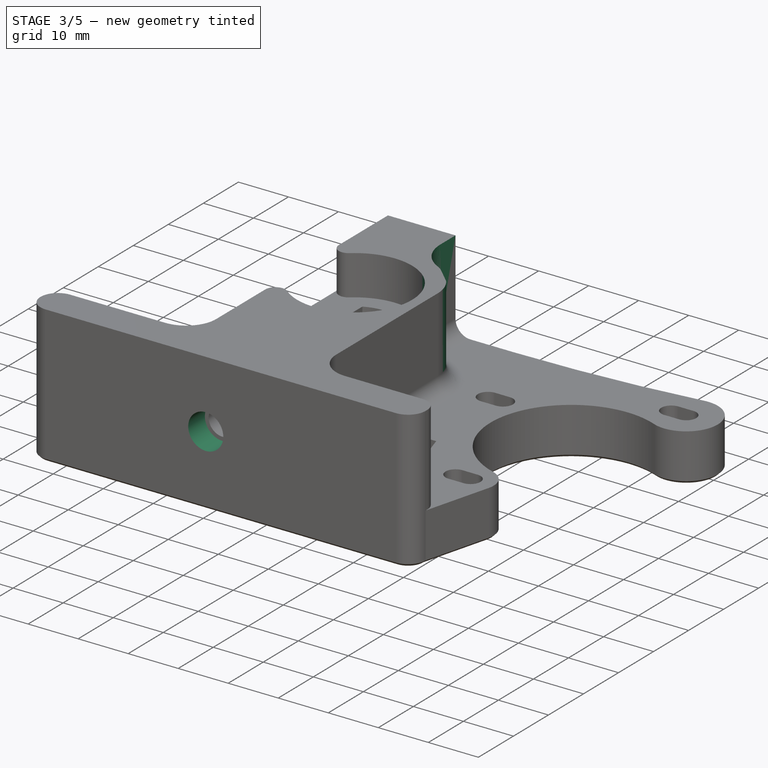
[diagram: stage 3 of 5 — iso view after this stage's code; geometry added in this stage tinted green]
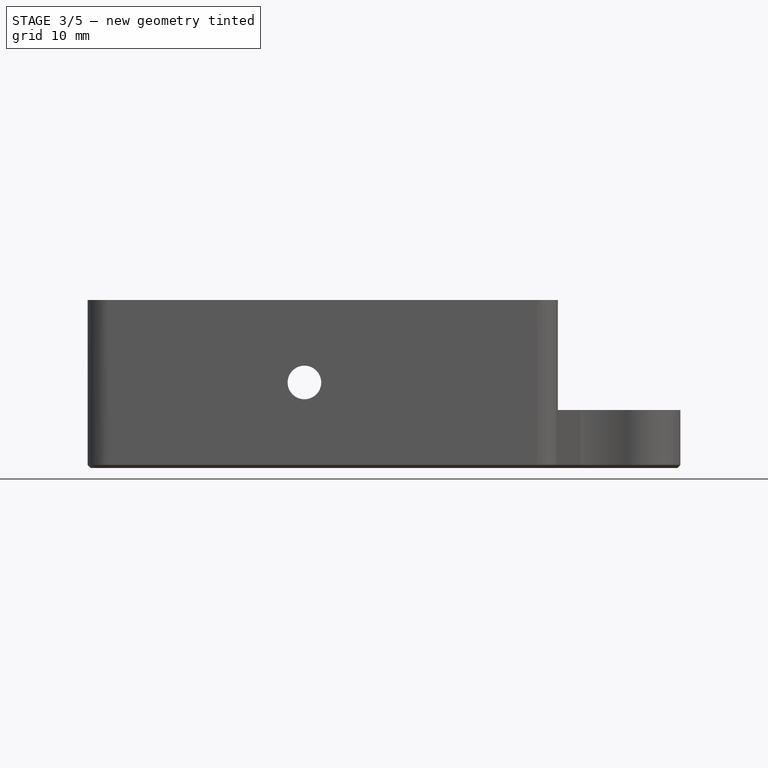
[diagram: stage 3 of 5 — front view after this stage's code; geometry added in this stage tinted green]
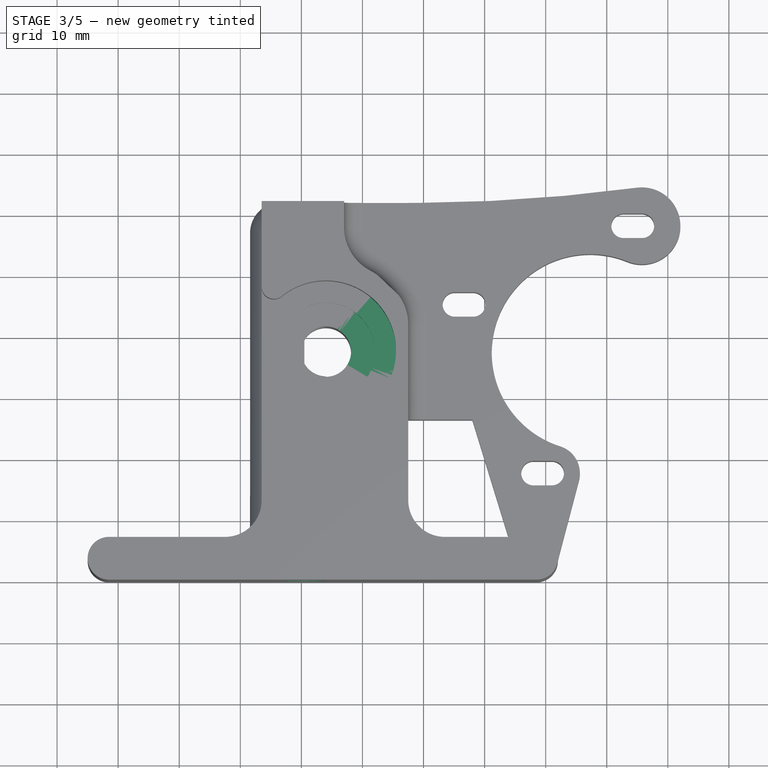
[diagram: stage 3 of 5 — top view after this stage's code; geometry added in this stage tinted green]
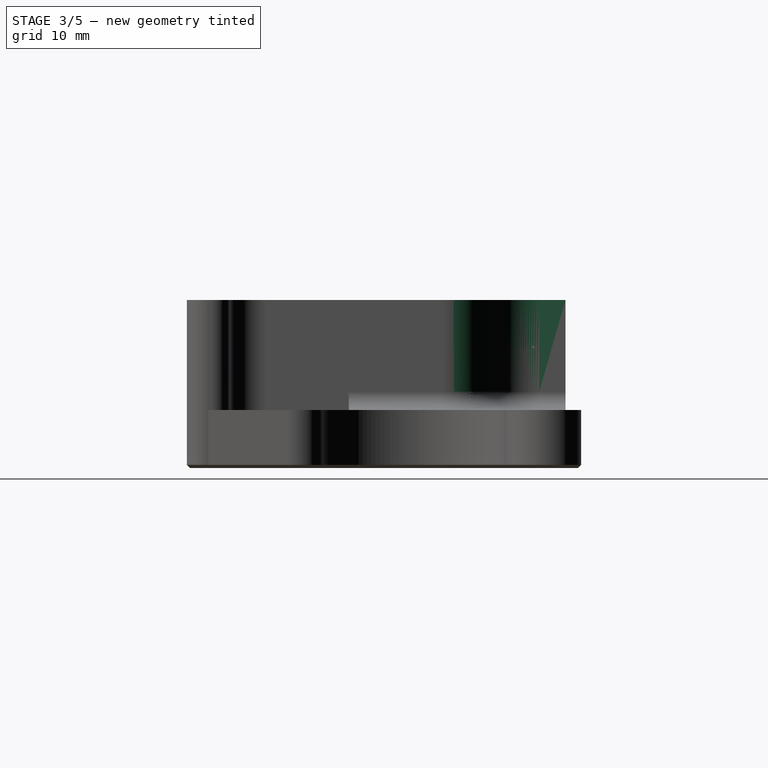
[diagram: stage 3 of 5 — right view after this stage's code; geometry added in this stage tinted green]
FEATURE [Sketcher::SketchObject] Sketch003
  ExternalGeometry = -> [Pocket]
  Placement = pos=(0,0,27.5) rot=(0,0,1;0rad)
  Support = -> Pocket [Face39]
  sketch-geometry (1):
    g0: Circle CenterX=4 CenterY=37.5 CenterZ=0 NormalX=0 NormalY=0 NormalZ=1 Radius=8
  constraints (2):
    c: Coincident(g0,g-3)
    c: Radius(g0) = 8
FEATURE [PartDesign::Pocket] Pocket001
  Length = 10
  Sketch = -> Sketch003
  Type = 0
FEATURE [Sketcher::SketchObject] Sketch004
  ExternalGeometry = -> [Pocket001]
  Placement = pos=(0,0,27.5) rot=(0,0,1;0rad)
  Support = -> Pocket001 [Face48]
  sketch-geometry (1):
    g0: Circle CenterX=4 CenterY=37.5 CenterZ=0 NormalX=0 NormalY=0 NormalZ=1 Radius=11.5
  constraints (2):
    c: Radius(g0) = 11.5
    c: Coincident(g0,g-3)
FEATURE [PartDesign::Pocket] Pocket002
  Length = 8
  Sketch = -> Sketch004
  Type = 0
FEATURE [Sketcher::SketchObject] Sketch005
  ExternalGeometry = -> [Pocket002]
  Placement = pos=(0,0,0) rot=(1,0,0;3.14159rad)
  Support = -> Pocket002 [Face4]
  sketch-geometry (1):
    g0: Circle CenterX=4 CenterY=-37.5 CenterZ=0 NormalX=0 NormalY=0 NormalZ=1 Radius=11.5
  constraints (2):
    c: Radius(g0) = 11.5
    c: Coincident(g0,g-3)
FEATURE [PartDesign::Pocket] Pocket003
  Length = 8
  Sketch = -> Sketch005
  Type = 0
FEATURE [Sketcher::SketchObject] Sketch006
  ExternalGeometry = -> [Pocket003]
  Placement = pos=(0,62,0) rot=(0,0.707107,0.707107;3.14159rad)
  Support = -> Pocket003 [Face46]
  sketch-geometry (2):
    g0: Circle CenterX=-0.5 CenterY=14 CenterZ=0 NormalX=0 NormalY=0 NormalZ=1 Radius=3.5
    g1: LineSegment [constr] StartX=-0.5 StartY=14 StartZ=0 EndX=-17.5 EndY=14 EndZ=0
  constraints (6):
    c: Coincident(g1,g0)
    c: PointOnObject(g1,g-3)
    c: Horizontal(g1)
    c: DistanceX(g1) = -17
    c: DistanceY(g0) = 14
    c: Radius(g0) = 3.5
FEATURE [PartDesign::Pocket] Pocket004
  Length = 5
  Sketch = -> Sketch006
  Type = 3
FEATURE [Sketcher::SketchObject] Sketch007
  ExternalGeometry = -> [Pocket004]
  Placement = pos=(0,0,27.5) rot=(0,0,1;0rad)
  Support = -> Pocket004 [Face49]
  sketch-geometry (4):
    g0: ArcOfCircle CenterX=4 CenterY=37.5 CenterZ=0 NormalX=0 NormalY=0 NormalZ=1 Radius=15 StartAngle=0 EndAngle=1.36944
    g1: LineSegment StartX=7 StartY=63.5892 StartZ=0 EndX=19 EndY=63.5892 EndZ=0
    g2: LineSegment StartX=7 StartY=52.1969 StartZ=0 EndX=7 EndY=63.5892 EndZ=0
    g3: LineSegment StartX=19 StartY=37.5 StartZ=0 EndX=19 EndY=63.5892 EndZ=0
  constraints (11):
    c: Coincident(g0,g-3)
    c: Radius(g0) = 15
    c: Horizontal(g1)
    c: Coincident(g2,g0)
    c: Vertical(g2)
    c: PointOnObject(g1,g2)
    c: PointOnObject(g2,g1)
    c: Coincident(g3,g0)
    c: Coincident(g3,g1)
    c: Vertical(g3)
    c: DistanceX(g0) = 7
FEATURE [PartDesign::Pocket] Pocket005
  Length = 18
  Sketch = -> Sketch007
  Type = 0
FEATURE [PartDesign::Fillet] Fillet
  Base = -> Pocket005 [Edge152]
  Radius = 8
FEATURE [PartDesign::Fillet] Fillet001
  Base = -> Fillet [Edge16]
  Radius = 8
FEATURE [PartDesign::Fillet] Fillet002
  Base = -> Fillet001 [Edge1]
  Radius = 3
FEATURE [PartDesign::Fillet] Fillet003
  Base = -> Fillet002 [Edge141,Edge146,Edge155,Edge159]
  Radius = 2
FEATURE [PartDesign::Fillet] Fillet004
  Base = -> Fillet003 [Edge166]
  Radius = 3
FEATURE [PartDesign::Chamfer] Chamfer
  Base = -> Fillet004 [Edge118]
  Size = 0.5
FEATURE [Sketcher::SketchObject] Sketch008
  Placement = pos=(0,0,27.5) rot=(0,0,1;0rad)
  Support = -> Chamfer [Face37]
  sketch-geometry (3):
    g0: LineSegment StartX=12.0883 StartY=50.2476 StartZ=0 EndX=16.7151 EndY=45.8719 EndZ=0
    g1: LineSegment StartX=12.0883 StartY=50.2476 StartZ=0 EndX=17.3966 EndY=50.2476 EndZ=0
    g2: LineSegment StartX=17.3966 StartY=50.2476 StartZ=0 EndX=16.7151 EndY=45.8719 EndZ=0
  constraints (4):
    c: Coincident(g0,g1)
    c: Horizontal(g1)
    c: Coincident(g1,g2)
    c: Coincident(g2,g0)
FEATURE [PartDesign::Pocket] Pocket006
  Length = 15
  Sketch = -> Sketch008
  Type = 0
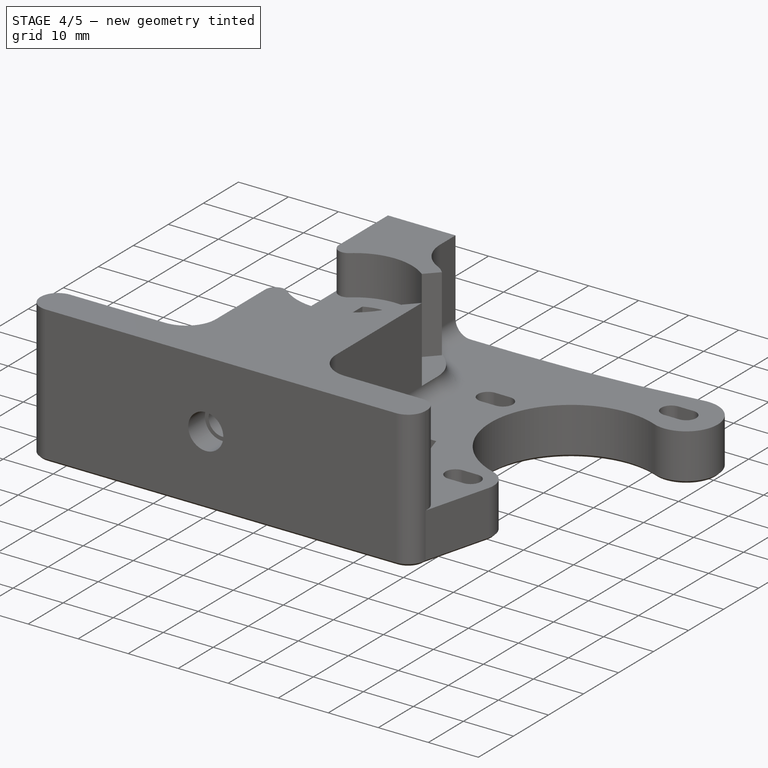
[diagram: stage 4 of 5 — iso view after this stage's code; geometry added in this stage tinted green]
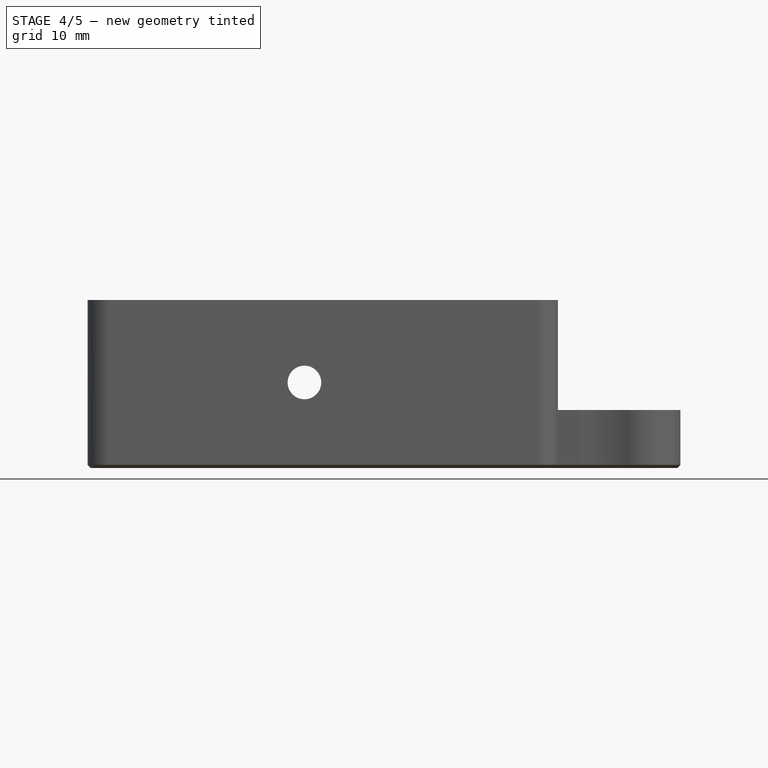
[diagram: stage 4 of 5 — front view after this stage's code; geometry added in this stage tinted green]
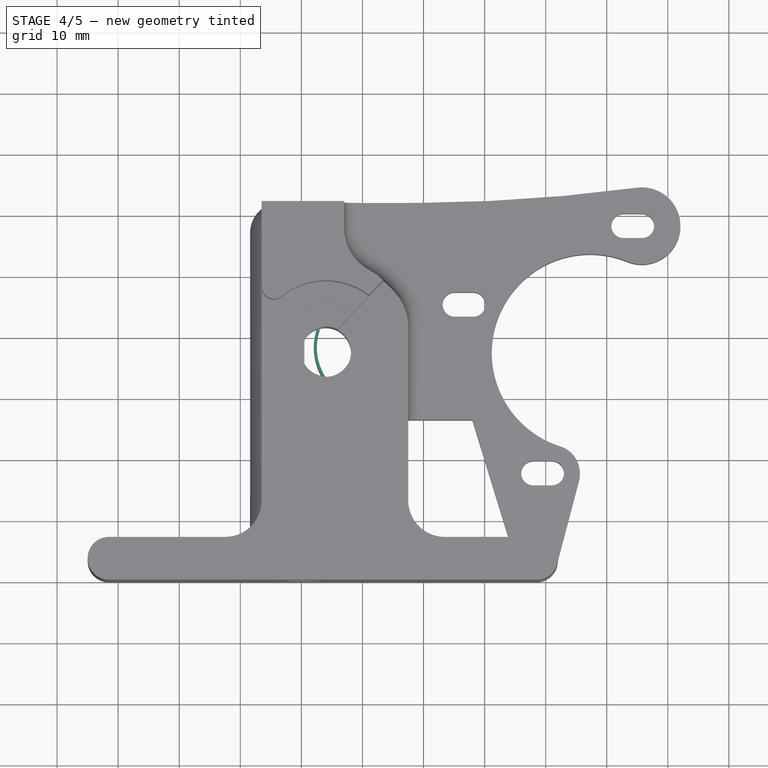
[diagram: stage 4 of 5 — top view after this stage's code; geometry added in this stage tinted green]
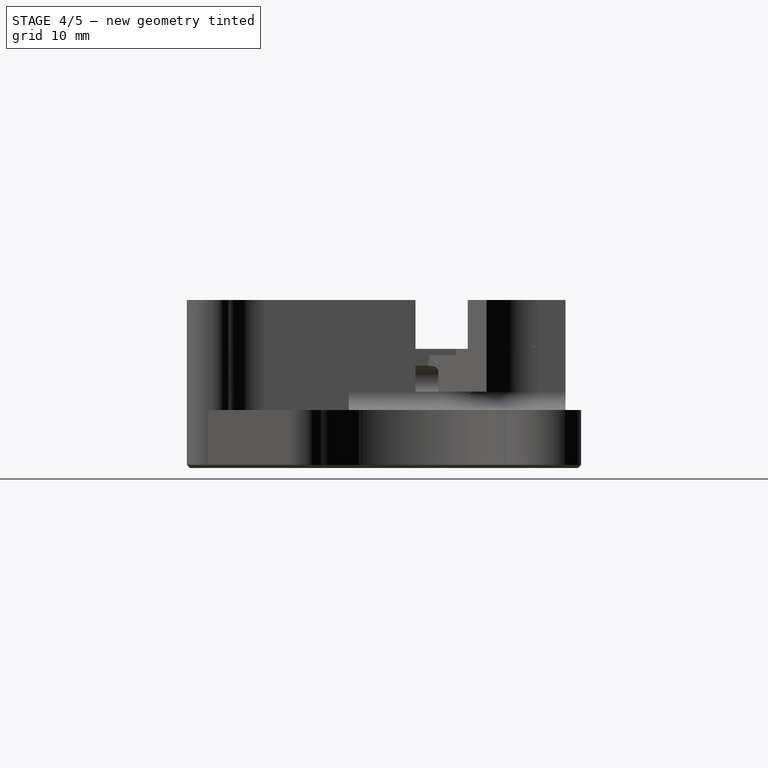
[diagram: stage 4 of 5 — right view after this stage's code; geometry added in this stage tinted green]
FEATURE [Sketcher::SketchObject] Sketch009
  Placement = pos=(30.7921,32.5588,0) rot=(0.270888,0.680669,0.680669;2.61251rad)
  Support = -> Pocket006 [Face67]
  sketch-geometry (4):
    g0: LineSegment StartX=24 StartY=12.5 StartZ=0 EndX=13 EndY=12.5 EndZ=0
    g1: LineSegment StartX=13 StartY=12.5 StartZ=0 EndX=13 EndY=32.5 EndZ=0
    g2: LineSegment StartX=13 StartY=32.5 StartZ=0 EndX=24 EndY=32.5 EndZ=0
    g3: LineSegment StartX=24 StartY=32.5 StartZ=0 EndX=24 EndY=12.5 EndZ=0
  constraints (12):
    c: Coincident(g0,g1)
    c: Coincident(g1,g2)
    c: Coincident(g2,g3)
    c: Coincident(g3,g0)
    c: Horizontal(g0)
    c: Horizontal(g2)
    c: Vertical(g1)
    c: Vertical(g3)
    c: DistanceX(g0) = 24
    c: DistanceY(g0) = 12.5
    c: DistanceX(g2) = 11
    c: DistanceY(g1) = 20
FEATURE [PartDesign::Pocket] Pocket007
  Length = 14
  Sketch = -> Sketch009
  Type = 0
FEATURE [PartDesign::Fillet] Fillet005
  Base = -> Pocket007 [Edge216]
  Radius = 5
FEATURE [Sketcher::SketchObject] Sketch010
  Placement = pos=(-6.5,0,0) rot=(0.57735,-0.57735,-0.57735;2.0944rad)
  Support = -> Fillet005 [Face31]
  sketch-geometry (1):
    g0: Circle CenterX=-37.5 CenterY=14 CenterZ=0 NormalX=0 NormalY=0 NormalZ=1 Radius=2.25
  constraints (3):
    c: DistanceX(g0) = -37.5
    c: DistanceY(g0) = 14
    c: Radius(g0) = 2.25
FEATURE [PartDesign::Pocket] Pocket008
  Length = 6
  Sketch = -> Sketch010
  Type = 0
FEATURE [Sketcher::SketchObject] Sketch011
  Placement = pos=(0,0,0) rot=(1,0,0;3.14159rad)
  Support = -> Pocket008 [Face84]
  sketch-geometry (4):
    g0: ArcOfCircle CenterX=52.7584 CenterY=-58.25 CenterZ=0 NormalX=0 NormalY=0 NormalZ=1 Radius=3.50202 StartAngle=1.54086 EndAngle=4.79026
    g1: ArcOfCircle CenterX=55.7584 CenterY=-58.25 CenterZ=0 NormalX=0 NormalY=0 NormalZ=1 Radius=3.50202 StartAngle=4.63451 EndAngle=7.88392
    g2: LineSegment StartX=53.0309 StartY=-61.7414 StartZ=0 EndX=55.486 EndY=-61.7414 EndZ=0
    g3: LineSegment StartX=52.8632 StartY=-54.7495 StartZ=0 EndX=55.6536 EndY=-54.7495 EndZ=0
  constraints (6):
    c: Horizontal(g2)
    c: Horizontal(g3)
    c: Coincident(g1,g3)
    c: Coincident(g0,g3)
    c: Coincident(g1,g2)
    c: Coincident(g0,g2)
FEATURE [PartDesign::Pocket] Pocket009
  Length = 4
  Sketch = -> Sketch011
  Type = 0
FEATURE [PartDesign::Chamfer] Chamfer001
  Base = -> Pocket009 [Edge280]
  Size = 1
FEATURE [Sketcher::SketchObject] Sketch012
  ExternalGeometry = -> [Chamfer001]
  Placement = pos=(0,0,0) rot=(1,0,0;3.14159rad)
  Support = -> Chamfer001 [Face15]
  sketch-geometry (6):
    g0: LineSegment [constr] StartX=25.1292 StartY=-45.3792 StartZ=0 EndX=25.1292 EndY=-41.8792 EndZ=0
    g1: LineSegment [constr] StartX=28.1292 StartY=-45.3792 StartZ=0 EndX=28.1292 EndY=-48.8792 EndZ=0
    g2: ArcOfCircle CenterX=25.1291 CenterY=-45.3792 CenterZ=0 NormalX=0 NormalY=0 NormalZ=1 Radius=3.5 StartAngle=1.57076 EndAngle=4.71233
    g3: ArcOfCircle CenterX=28.1292 CenterY=-45.3792 CenterZ=0 NormalX=0 NormalY=0 NormalZ=1 Radius=3.5 StartAngle=4.71239 EndAngle=7.85398
    g4: LineSegment StartX=25.1292 StartY=-41.8792 StartZ=0 EndX=28.1292 EndY=-41.8792 EndZ=0
    g5: LineSegment StartX=25.1289 StartY=-48.8792 StartZ=0 EndX=28.1292 EndY=-48.8792 EndZ=0
  constraints (15):
    c: Coincident(g0,g-3)
    c: Vertical(g0)
    c: Coincident(g1,g-4)
    c: Vertical(g1)
    c: DistanceY(g1) = -3.5
    c: DistanceY(g0) = 3.5
    c: Coincident(g2,g0)
    c: Coincident(g3,g1)
    c: Coincident(g3,g1)
    c: Coincident(g4,g0)
    c: Coincident(g4,g3)
    c: Horizontal(g4)
    c: Coincident(g5,g2)
    c: Coincident(g5,g1)
    c: Horizontal(g5)
FEATURE [PartDesign::Pocket] Pocket010
  Length = 4
  Sketch = -> Sketch012
  Type = 0
FEATURE [PartDesign::Chamfer] Chamfer002
  Base = -> Pocket010 [Edge137]
  Size = 1
FEATURE [Sketcher::SketchObject] Sketch013
  ExternalGeometry = -> [Chamfer002]
  Placement = pos=(0,0,0) rot=(1,0,0;3.14159rad)
  Support = -> Chamfer002 [Face4]
  sketch-geometry (6):
    g0: LineSegment [constr] StartX=38 StartY=-17.75 StartZ=0 EndX=38 EndY=-14.25 EndZ=0
    g1: LineSegment [constr] StartX=41 StartY=-17.75 StartZ=0 EndX=41 EndY=-21.25 EndZ=0
    g2: ArcOfCircle CenterX=38 CenterY=-17.75 CenterZ=0 NormalX=0 NormalY=0 NormalZ=1 Radius=3.5 StartAngle=1.5708 EndAngle=4.71239
    g3: ArcOfCircle CenterX=41 CenterY=-17.75 CenterZ=0 NormalX=0 NormalY=0 NormalZ=1 Radius=3.5 StartAngle=4.71239 EndAngle=7.85398
    g4: LineSegment StartX=38 StartY=-14.25 StartZ=0 EndX=41 EndY=-14.25 EndZ=0
    g5: LineSegment StartX=38 StartY=-21.25 StartZ=0 EndX=41 EndY=-21.25 EndZ=0
  constraints (16):
    c: Coincident(g0,g-3)
    c: Vertical(g0)
    c: Coincident(g1,g-4)
    c: Vertical(g1)
    c: DistanceY(g0) = 3.5
    c: DistanceY(g1) = -3.5
    c: Coincident(g2,g0)
    c: Coincident(g2,g0)
    c: Coincident(g3,g1)
    c: Coincident(g3,g1)
    c: Coincident(g4,g0)
    c: Coincident(g4,g3)
    c: Horizontal(g4)
    c: Coincident(g5,g1)
    c: Horizontal(g5)
    c: Coincident(g2,g5)
FEATURE [PartDesign::Pocket] Pocket011
  Length = 4
  Sketch = -> Sketch013
  Type = 0
FEATURE [PartDesign::Chamfer] Chamfer003
  Base = -> Pocket011 [Edge64]
  Size = 1
FEATURE [Sketcher::SketchObject] Sketch014
  ExternalGeometry = -> [Chamfer003]
  Placement = pos=(0,0,9.5) rot=(1,0,0;3.14159rad)
  Support = -> Chamfer003 [Face90]
  sketch-geometry (5):
    g0: ArcOfCircle CenterX=-0.441763 CenterY=-55.9418 CenterZ=0 NormalX=0 NormalY=0 NormalZ=1 Radius=6.05852 StartAngle=3.15121 EndAngle=4.70278
    g1: LineSegment StartX=-6.5 StartY=-56 StartZ=0 EndX=-8.26157 EndY=-56.2522 EndZ=0
    g2: LineSegment StartX=-8.26157 StartY=-56.2522 StartZ=0 EndX=-8.26157 EndY=-63.9627 EndZ=0
    g3: LineSegment StartX=-8.26157 StartY=-63.9627 StartZ=0 EndX=-0.380402 EndY=-63.9627 EndZ=0
    g4: LineSegment StartX=-0.380402 StartY=-63.9627 StartZ=0 EndX=-0.5 EndY=-62 EndZ=0
  constraints (9):
    c: Coincident(g0,g-4)
    c: Coincident(g0,g-3)
    c: Coincident(g1,g0)
    c: Coincident(g1,g2)
    c: Vertical(g2)
    c: Coincident(g2,g3)
    c: Horizontal(g3)
    c: Coincident(g3,g4)
    c: Coincident(g4,g0)
FEATURE [PartDesign::Pocket] Pocket012
  Length = 5
  Sketch = -> Sketch014
  Type = 0
FEATURE [Sketcher::SketchObject] Sketch015
  ExternalGeometry = -> [Pocket012]
  Placement = pos=(0,0,8) rot=(1,0,0;3.14159rad)
  Support = -> Pocket012 [Face89]
  sketch-geometry (6):
    g0: Circle [constr] CenterX=4 CenterY=-37.5 CenterZ=0 NormalX=0 NormalY=0 NormalZ=1 Radius=4.125
    g1: Circle [constr] CenterX=4 CenterY=-37.5 CenterZ=0 NormalX=0 NormalY=0 NormalZ=1 Radius=4.625
    g2: Circle CenterX=4 CenterY=-37.5 CenterZ=0 NormalX=0 NormalY=0 NormalZ=1 Radius=7
    g3: Circle CenterX=4 CenterY=-37.5 CenterZ=0 NormalX=0 NormalY=0 NormalZ=1 Radius=7.5
    g4: Circle [constr] CenterX=4 CenterY=-37.5 CenterZ=0 NormalX=0 NormalY=0 NormalZ=1 Radius=9
    g5: Circle [constr] CenterX=4 CenterY=-37.5 CenterZ=0 NormalX=0 NormalY=0 NormalZ=1 Radius=9.5
  constraints (12):
    c: Coincident(g0,g-3)
    c: Coincident(g1,g0)
    c: Coincident(g2,g0)
    c: Coincident(g3,g0)
    c: Radius(g0) = 4.125
    c: Radius(g1) = 4.625
    c: Radius(g2) = 7
    c: Radius(g3) = 7.5
    c: Coincident(g4,g0)
    c: Radius(g4) = 9
    c: Coincident(g5,g0)
    c: Radius(g5) = 9.5
FEATURE [PartDesign::Pad] Pad002
  Length = 8
  Length2 = 100
  Sketch = -> Sketch015
  Type = 0
FEATURE [Sketcher::SketchObject] Sketch016
  ExternalGeometry = -> [Pad002]
  Placement = pos=(0,0,8) rot=(1,0,0;3.14159rad)
  Support = -> Pad002 [Face89]
  sketch-geometry (2):
    g0: Circle CenterX=4 CenterY=-37.5 CenterZ=0 NormalX=0 NormalY=0 NormalZ=1 Radius=4.125
    g1: Circle CenterX=4 CenterY=-37.5 CenterZ=0 NormalX=0 NormalY=0 NormalZ=1 Radius=4.625
  constraints (4):
    c: Coincident(g0,g-3)
    c: Coincident(g1,g0)
    c: Radius(g0) = 4.125
    c: Radius(g1) = 4.625
FEATURE [PartDesign::Pad] Pad003
  Length = 8
  Length2 = 100
  Sketch = -> Sketch016
  Type = 0
FEATURE [Sketcher::SketchObject] Sketch017
  ExternalGeometry = -> [Pad003]
  Placement = pos=(0,0,8) rot=(1,0,0;3.14159rad)
  Support = -> Pad003 [Face89]
  sketch-geometry (2):
    g0: Circle CenterX=11.5302 CenterY=-38.3881 CenterZ=0 NormalX=0 NormalY=0 NormalZ=1 Radius=9
    g1: Circle CenterX=11.5302 CenterY=-38.3881 CenterZ=0 NormalX=0 NormalY=0 NormalZ=1 Radius=9.5
  constraints (4):
    c: Coincident(g0,g-3)
    c: Coincident(g1,g0)
    c: Radius(g0) = 9
    c: Radius(g1) = 9.5
FEATURE [PartDesign::Pad] Pad004
  Length = 8
  Length2 = 100
  Sketch = -> Sketch017
  Type = 0
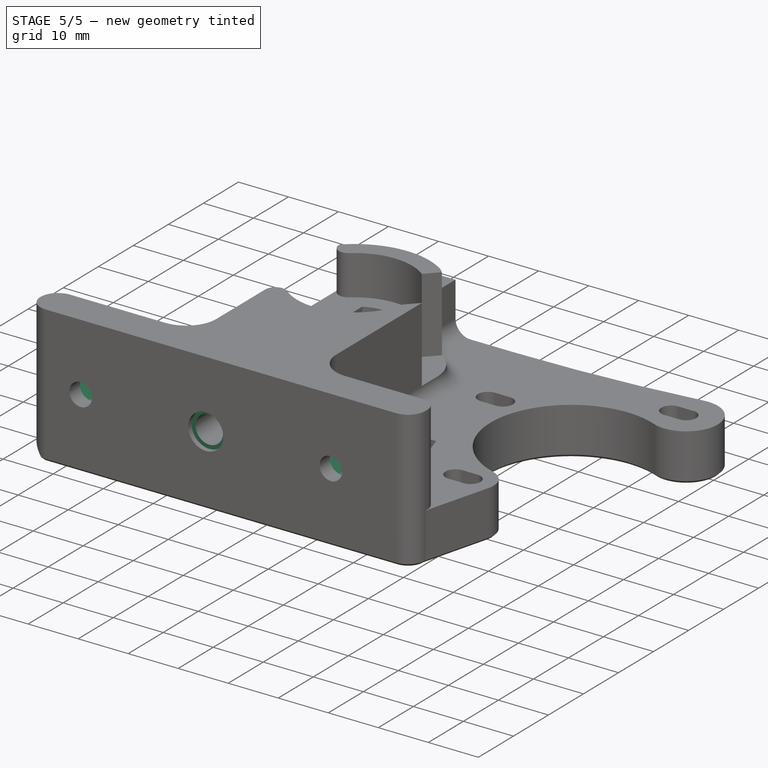
[diagram: stage 5 of 5 — iso view after this stage's code; geometry added in this stage tinted green]
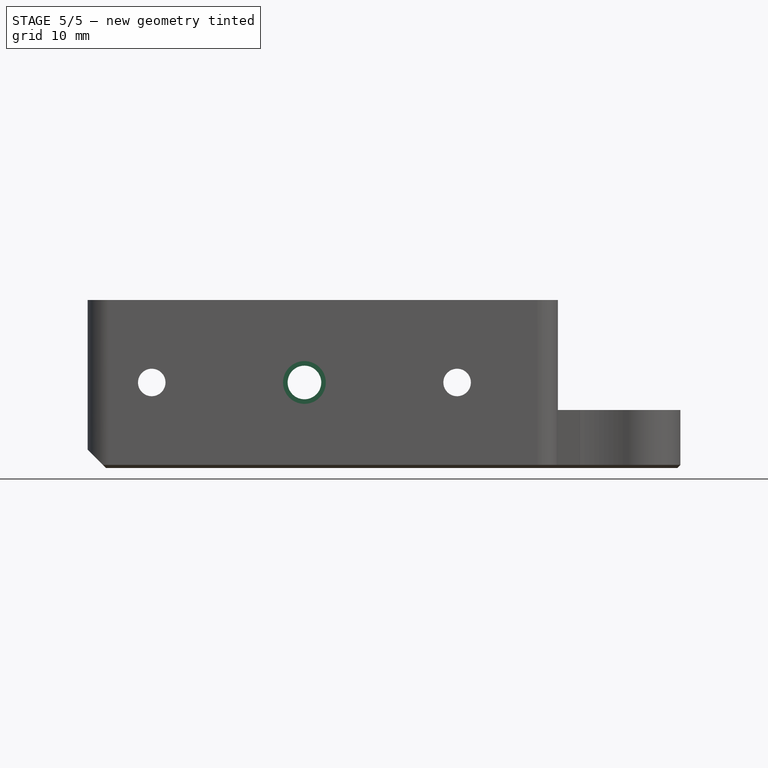
[diagram: stage 5 of 5 — front view after this stage's code; geometry added in this stage tinted green]
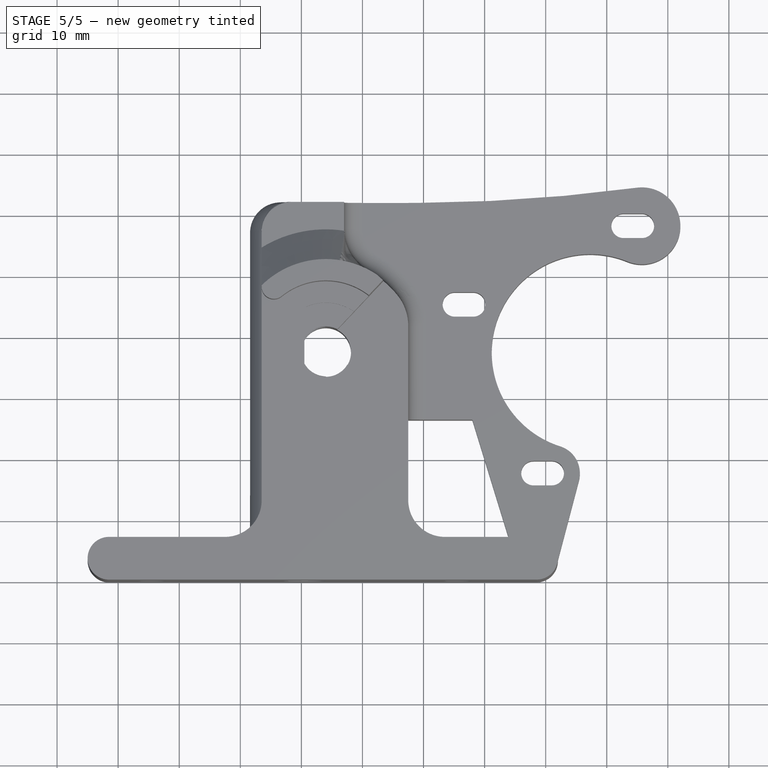
[diagram: stage 5 of 5 — top view after this stage's code; geometry added in this stage tinted green]
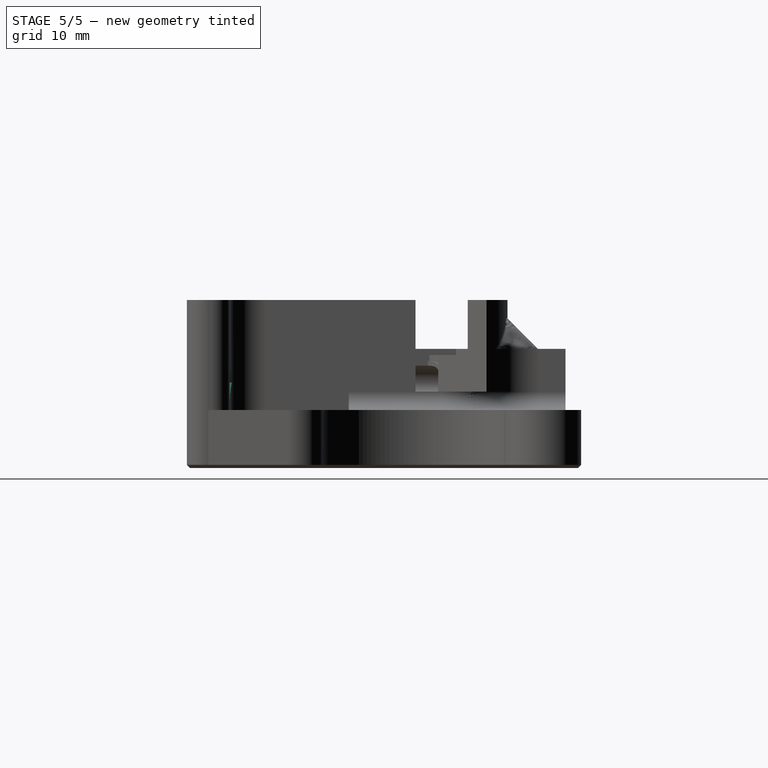
[diagram: stage 5 of 5 — right view after this stage's code; geometry added in this stage tinted green]
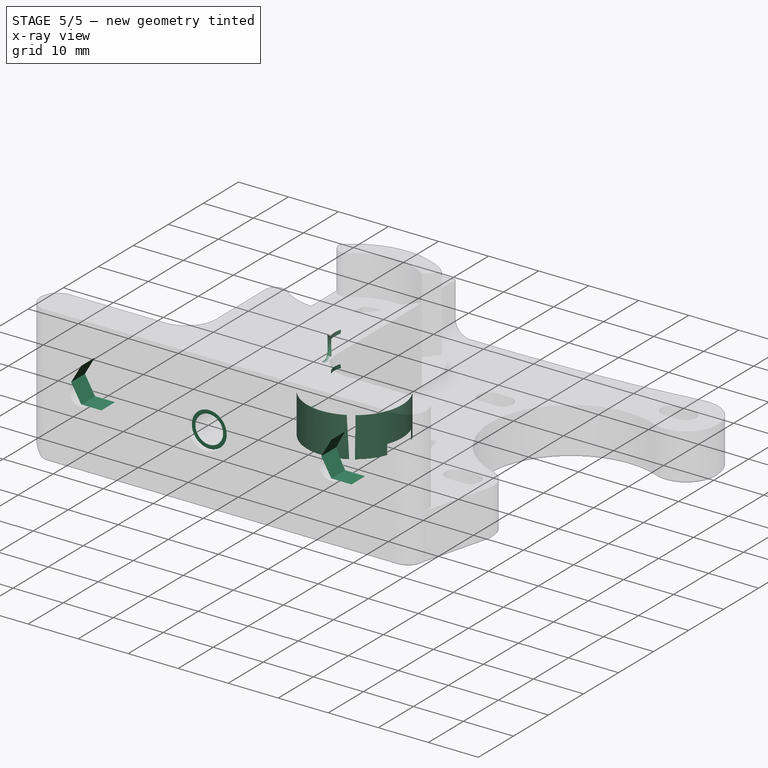
[diagram: stage 5 of 5 — x-ray composite at the iso view; earlier geometry ghosted, this stage's added geometry solid]
FEATURE [Sketcher::SketchObject] Sketch018
  Placement = pos=(0,0,0) rot=(1,0,0;3.14159rad)
  Support = -> Pad004 [Face133]
  sketch-geometry (8):
    g0: LineSegment StartX=-5.59594 StartY=-34.1307 StartZ=0 EndX=14.0665 EndY=-34.1307 EndZ=0
    g1: LineSegment StartX=14.0665 StartY=-34.1307 StartZ=0 EndX=14.0665 EndY=-40.9004 EndZ=0
    g2: LineSegment StartX=14.0665 StartY=-40.9004 StartZ=0 EndX=-5.59594 EndY=-40.9004 EndZ=0
    g3: LineSegment StartX=-5.59594 StartY=-40.9004 StartZ=0 EndX=-5.59594 EndY=-34.1307 EndZ=0
    g4: LineSegment [constr] StartX=20.739 StartY=-34.1307 StartZ=0 EndX=1.07657 EndY=-34.1307 EndZ=0
    g5: LineSegment [constr] StartX=1.07657 StartY=-34.1307 StartZ=0 EndX=1.07657 EndY=-40.9004 EndZ=0
    g6: LineSegment [constr] StartX=1.07657 StartY=-40.9004 StartZ=0 EndX=20.739 EndY=-40.9004 EndZ=0
    g7: LineSegment [constr] StartX=20.739 StartY=-40.9004 StartZ=0 EndX=20.739 EndY=-34.1307 EndZ=0
  constraints (19):
    c: Coincident(g0,g1)
    c: Coincident(g1,g2)
    c: Coincident(g2,g3)
    c: Coincident(g3,g0)
    c: Horizontal(g0)
    c: Horizontal(g2)
    c: Vertical(g1)
    c: Vertical(g3)
    c: Coincident(g4,g5)
    c: Coincident(g5,g6)
    c: Coincident(g6,g7)
    c: Coincident(g7,g4)
    c: Horizontal(g4)
    c: Horizontal(g6)
    c: Vertical(g5)
    c: Vertical(g7)
    c: Equal(g7,g1)
    c: Equal(g4,g0)
    c: PointOnObject(g0,g4)
FEATURE [PartDesign::Pad] Pad005
  Length = 2
  Length2 = 100
  Reversed = true
  Sketch = -> Sketch018
  Type = 0
FEATURE [Sketcher::SketchObject] Sketch019
  ExternalGeometry = -> [Pad005]
  Placement = pos=(0,0,0) rot=(1,0,0;3.14159rad)
  Support = -> Pad005 [Face164]
  sketch-geometry (1):
    g0: Circle CenterX=4 CenterY=-37.5 CenterZ=0 NormalX=0 NormalY=0 NormalZ=1 Radius=7.5
  constraints (2):
    c: Coincident(g0,g-3)
    c: PointOnObject(g-3,g0)
FEATURE [PartDesign::Pocket] Pocket013
  Length = 5
  Sketch = -> Sketch019
  Type = 0
FEATURE [Sketcher::SketchObject] Sketch020
  ExternalGeometry = -> [Pocket013]
  Placement = pos=(0,62,0) rot=(0,0.707107,0.707107;3.14159rad)
  Support = -> Pocket013 [Face53]
  sketch-geometry (4):
    g0: LineSegment StartX=-11.6218 StartY=-30.45 StartZ=0 EndX=-11.1218 EndY=-30.45 EndZ=0
    g1: LineSegment StartX=-11.1218 StartY=-30.45 StartZ=0 EndX=-11.1218 EndY=-44.9947 EndZ=0
    g2: LineSegment StartX=-11.1218 StartY=-44.9947 StartZ=0 EndX=-11.6218 EndY=-44.9947 EndZ=0
    g3: LineSegment StartX=-11.6218 StartY=-44.9947 StartZ=0 EndX=-11.6218 EndY=-30.45 EndZ=0
  constraints (10):
    c: Coincident(g0,g1)
    c: Coincident(g1,g2)
    c: Coincident(g2,g3)
    c: Coincident(g3,g0)
    c: Horizontal(g0)
    c: Horizontal(g2)
    c: Vertical(g1)
    c: Vertical(g3)
    c: PointOnObject(g0,g-3)
    c: DistanceX(g2) = -0.5
FEATURE [PartDesign::Pad] Pad006
  Length = 8
  Length2 = 100
  Sketch = -> Sketch020
  Type = 0
FEATURE [Sketcher::SketchObject] Sketch021
  ExternalGeometry = -> [Pad006]
  Placement = pos=(0,0,8) rot=(1,0,0;3.14159rad)
  Support = -> Pad006 [Face88]
  sketch-geometry (2):
    g0: Circle CenterX=-0.5 CenterY=14 CenterZ=0 NormalX=0 NormalY=0 NormalZ=1 Radius=2.75
    g1: Circle CenterX=-0.5 CenterY=14 CenterZ=0 NormalX=0 NormalY=0 NormalZ=1 Radius=3.5
  constraints (4):
    c: Coincident(g0,g-3)
    c: Coincident(g1,g0)
    c: Radius(g0) = 2.75
    c: Radius(g1) = 3.5
FEATURE [PartDesign::Pad] Pad007
  Length = 61
  Length2 = 100
  Reversed = true
  Sketch = -> Sketch021
  Type = 0
FEATURE [Sketcher::SketchObject] Sketch022
  ExternalGeometry = -> [Pad007]
  Placement = pos=(0,0,17.5) rot=(0,0,1;0rad)
  Support = -> Pad007 [Face152]
  sketch-geometry (1):
    g0: Circle CenterX=4 CenterY=37.5 CenterZ=0 NormalX=0 NormalY=0 NormalZ=1 Radius=4
  constraints (2):
    c: Coincident(g0,g-3)
    c: Radius(g0) = 4
FEATURE [PartDesign::Pocket] Pocket014
  Length = 5
  Sketch = -> Sketch022
  Type = 3
FEATURE [Sketcher::SketchObject] Sketch023
  ExternalGeometry = -> [Pocket014]
  Placement = pos=(0,0,27.5) rot=(0,0,1;0rad)
  Support = -> Pocket014 [Face91]
  sketch-geometry (5):
    g0: LineSegment StartX=-10.7838 StartY=70 StartZ=0 EndX=18.8379 EndY=70 EndZ=0
    g1: LineSegment StartX=18.8379 StartY=70 StartZ=0 EndX=18.8379 EndY=39.6992 EndZ=0
    g2: LineSegment StartX=-10.7838 StartY=40.0374 StartZ=0 EndX=-10.7838 EndY=70 EndZ=0
    g3: Circle [constr] CenterX=4 CenterY=37.5 CenterZ=0 NormalX=0 NormalY=0 NormalZ=1 Radius=15
    g4: ArcOfCircle CenterX=4 CenterY=37.5 CenterZ=0 NormalX=0 NormalY=0 NormalZ=1 Radius=15 StartAngle=0.147143 EndAngle=2.97162
  constraints (12):
    c: Coincident(g0,g1)
    c: Coincident(g2,g0)
    c: Horizontal(g0)
    c: Vertical(g1)
    c: Vertical(g2)
    c: Coincident(g3,g-3)
    c: Radius(g3) = 15
    c: PointOnObject(g1,g3)
    c: PointOnObject(g2,g3)
    c: Coincident(g4,g3)
    c: Coincident(g4,g2)
    c: Coincident(g4,g1)
FEATURE [PartDesign::Pocket] Pocket015
  Length = 8
  Sketch = -> Sketch023
  Type = 0
FEATURE [Sketcher::SketchObject] Sketch024
  ExternalGeometry = -> [Pocket015]
  Placement = pos=(0,62,0) rot=(0,0.707107,0.707107;3.14159rad)
  Support = -> Pocket015 [Face66]
  sketch-geometry (2):
    g0: LineSegment [constr] StartX=-0.5 StartY=14 StartZ=0 EndX=-25.5 EndY=14 EndZ=0
    g1: Circle CenterX=-25.5 CenterY=14 CenterZ=0 NormalX=0 NormalY=0 NormalZ=1 Radius=2.25
  constraints (5):
    c: Coincident(g0,g-3)
    c: Horizontal(g0)
    c: Coincident(g1,g0)
    c: DistanceX(g0) = -25
    c: Radius(g1) = 2.25
FEATURE [PartDesign::Pocket] Pocket016
  Length = 5
  Sketch = -> Sketch024
  Type = 3
FEATURE [PartDesign::LinearPattern] LinearPattern
  Length = 50
  Occurrences = 2
  Originals = -> [Pocket016]
  Reversed = true
FEATURE [Sketcher::SketchObject] Sketch025
  ExternalGeometry = -> [LinearPattern]
  Placement = pos=(0,62,0) rot=(0,0.707107,0.707107;3.14159rad)
  Support = -> LinearPattern [Face88]
  sketch-geometry (8):
    g0: LineSegment [constr] StartX=-0.5 StartY=14 StartZ=0 EndX=-25.5 EndY=14 EndZ=0
    g1: Circle [constr] CenterX=-25.5 CenterY=14 CenterZ=0 NormalX=0 NormalY=0 NormalZ=1 Radius=3.5
    g2: LineSegment StartX=-27.5207 StartY=17.5 StartZ=0 EndX=-23.4793 EndY=17.5 EndZ=0
    g3: LineSegment StartX=-23.4793 StartY=17.5 StartZ=0 EndX=-21.4585 EndY=14 EndZ=0
    g4: LineSegment StartX=-21.4585 StartY=14 StartZ=0 EndX=-23.4793 EndY=10.5 EndZ=0
    g5: LineSegment StartX=-23.4793 StartY=10.5 StartZ=0 EndX=-27.5207 EndY=10.5 EndZ=0
    g6: LineSegment StartX=-27.5207 StartY=10.5 StartZ=0 EndX=-29.5415 EndY=14 EndZ=0
    g7: LineSegment StartX=-29.5415 StartY=14 StartZ=0 EndX=-27.5207 EndY=17.5 EndZ=0
  constraints (24):
    c: Coincident(g0,g-3)
    c: Horizontal(g0)
    c: DistanceX(g0) = -25
    c: Coincident(g1,g0)
    c: Radius(g1) = 3.5
    c: Horizontal(g2)
    c: Tangent(g2,g1)
    c: Coincident(g2,g3)
    c: Tangent(g3,g1)
    c: Coincident(g3,g4)
    c: Tangent(g4,g1)
    c: Coincident(g4,g5)
    c: Horizontal(g5)
    c: Tangent(g5,g1)
    c: Coincident(g5,g6)
    c: Tangent(g6,g1)
    c: Coincident(g6,g7)
    c: Coincident(g7,g2)
    c: Tangent(g7,g1)
    c: Equal(g2,g3)
    c: Equal(g3,g4)
    c: Equal(g4,g5)
    c: Equal(g5,g6)
    c: Equal(g6,g7)
FEATURE [PartDesign::Pocket] Pocket017
  Length = 59
  Sketch = -> Sketch025
  Type = 0
FEATURE [PartDesign::LinearPattern] LinearPattern001
  Length = 50
  Occurrences = 2
  Originals = -> [Pocket017]
  Reversed = true
FEATURE [Sketcher::SketchObject] Sketch026
  ExternalGeometry = -> [LinearPattern001]
  Placement = pos=(-6.5,0,0) rot=(0.57735,-0.57735,-0.57735;2.0944rad)
  Support = -> LinearPattern001 [Face86]
  sketch-geometry (1):
    g0: Circle CenterX=-37.5 CenterY=14 CenterZ=0 NormalX=0 NormalY=0 NormalZ=1 Radius=2.25
  constraints (2):
    c: Coincident(g0,g-3)
    c: Radius(g0) = 2.25
FEATURE [PartDesign::Pocket] Pocket018
  Length = 8
  Sketch = -> Sketch026
  Type = 0
FEATURE [PartDesign::Chamfer] Chamfer004
  Base = -> Pocket018 [Edge295]
  Size = 5
FEATURE [Sketcher::SketchObject] Sketch027
  Placement = pos=(0,0,0) rot=(1,0,0;1.5708rad)
  Support = -> Chamfer004 [Face97]
  sketch-geometry (6):
    g0: LineSegment StartX=-32 StartY=0 StartZ=0 EndX=-36 EndY=4 EndZ=0
    g1: LineSegment StartX=-36 StartY=4 StartZ=0 EndX=-36 EndY=28 EndZ=0
    g2: LineSegment StartX=-36 StartY=28 StartZ=0 EndX=-30 EndY=30 EndZ=0
    g3: LineSegment StartX=-30 StartY=30 StartZ=0 EndX=-40 EndY=30 EndZ=0
    g4: LineSegment StartX=-40 StartY=30 StartZ=0 EndX=-40 EndY=0 EndZ=0
    g5: LineSegment StartX=-40 StartY=0 StartZ=0 EndX=-32 EndY=0 EndZ=0
  constraints (10):
    c: Coincident(g0,g1)
    c: Vertical(g1)
    c: Coincident(g1,g2)
    c: Coincident(g2,g3)
    c: Horizontal(g3)
    c: Coincident(g3,g4)
    c: Vertical(g4)
    c: Coincident(g4,g5)
    c: Coincident(g5,g0)
    c: Horizontal(g5)
FEATURE [PartDesign::Pocket] Pocket019
  Length = 5
  Sketch = -> Sketch027
  Type = 3
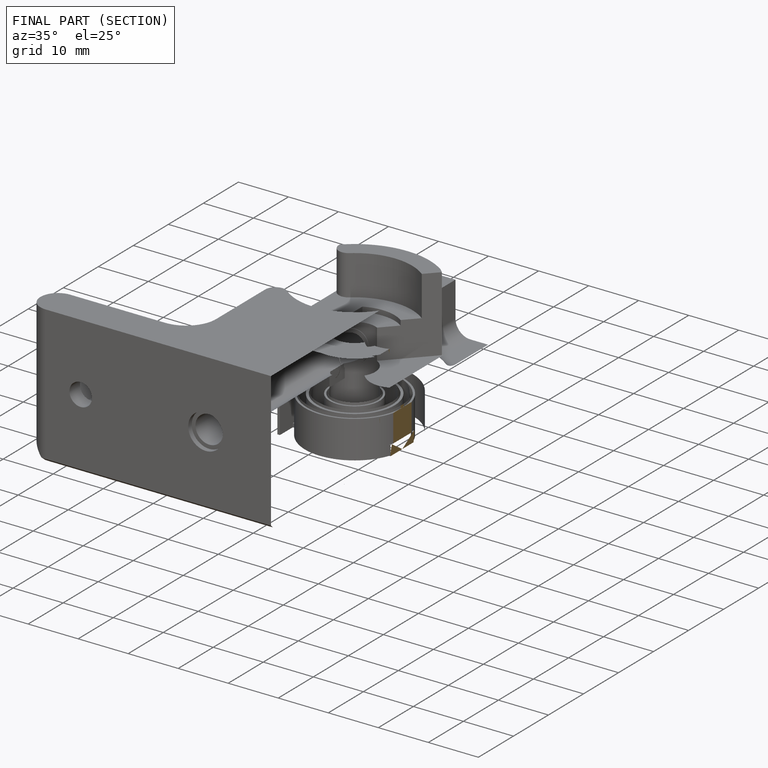
[diagram: finished part — half-section view (interior)]
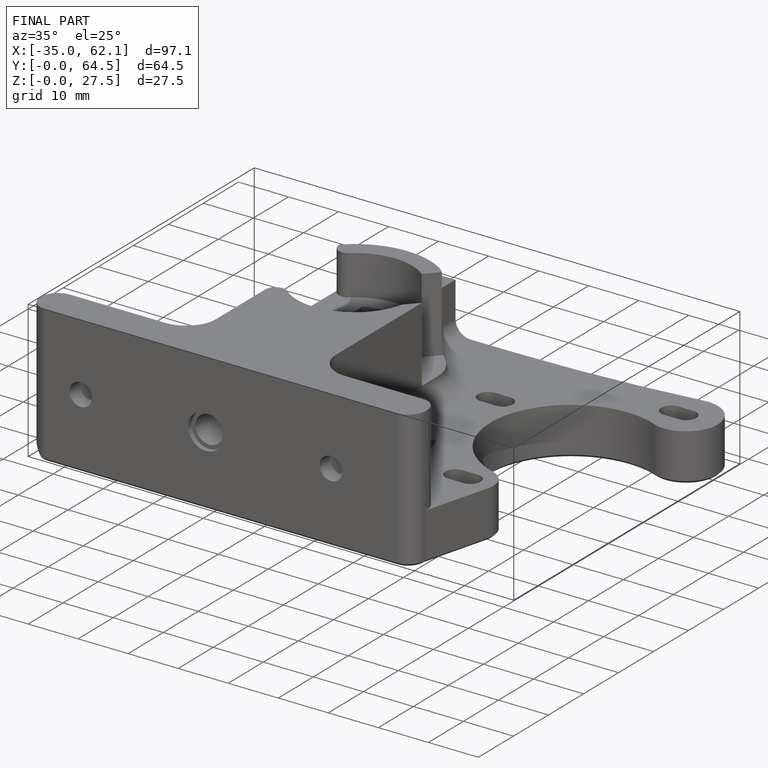
[diagram: finished part — iso view with bounding-box wireframe]
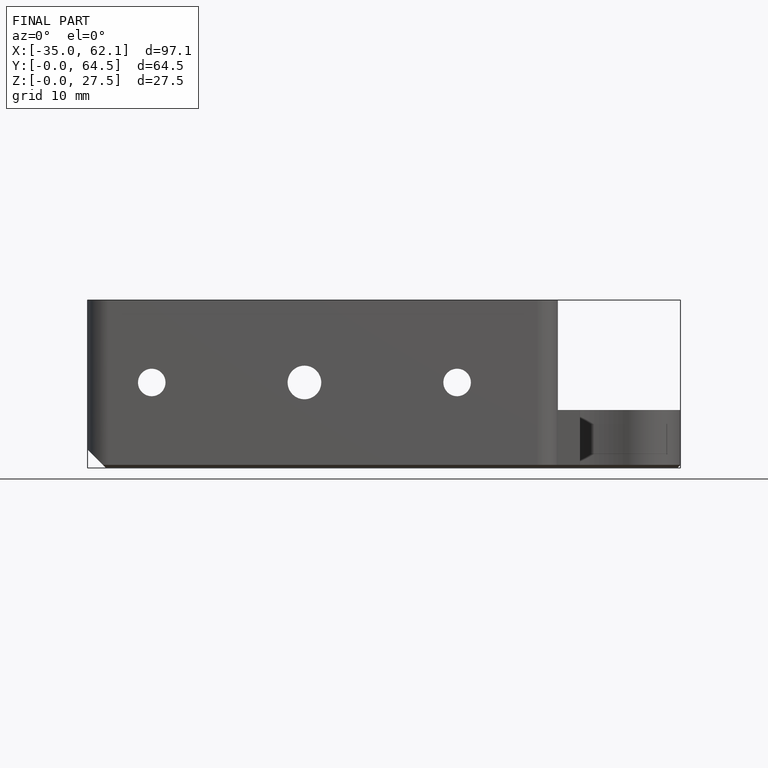
[diagram: finished part — front view with bounding-box wireframe]
